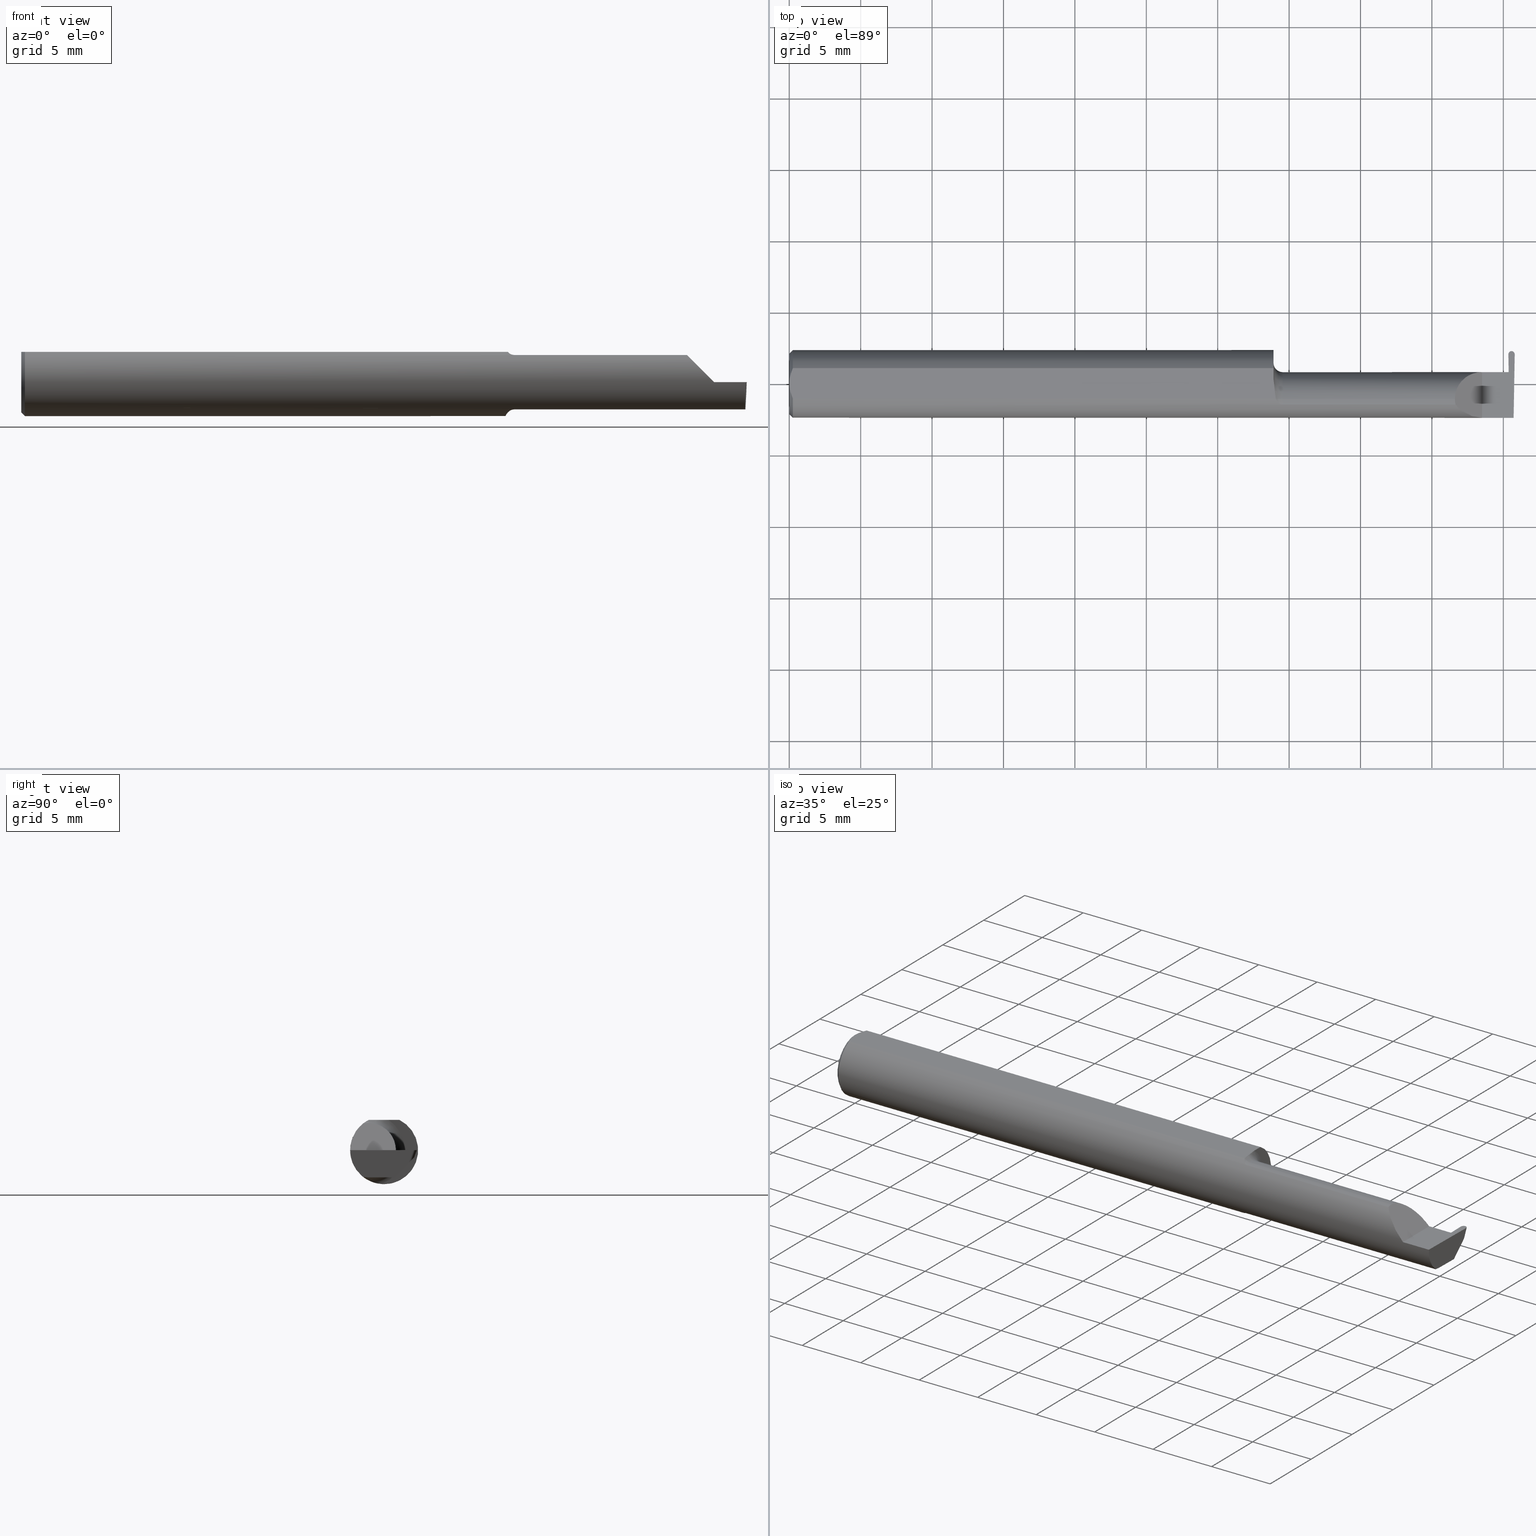
[diagram: canonical four-view strip — front | top / right | iso, engineering-drawing reading convention]
A machine part, canonical four-view strip (front | top / right | iso — engineering-drawing reading convention). The complete STEP part file that produces these views, byte-faithful:
ISO-10303-21;
HEADER;
FILE_DESCRIPTION (( 'STEP AP203' ),
    '1' );
FILE_NAME ('221801-GFR017K-10.STEP',
    '2024-06-17T17:56:43',
    ( '' ),
    ( '' ),
    'SwSTEP 2.0',
    'SolidWorks 2022',
    '' );
FILE_SCHEMA (( 'CONFIG_CONTROL_DESIGN' ));
ENDSEC;

DATA;
#1 = ORIENTED_EDGE ( 'NONE', *, *, #764, .F. ) ;
#2 = DIRECTION ( 'NONE',  ( -1.000000000000000000, -0.000000000000000000, -0.000000000000000000 ) ) ;
#3 = EDGE_CURVE ( 'NONE', #665, #741, #28, .T. ) ;
#4 = DIRECTION ( 'NONE',  ( 0.000000000000000000, 0.000000000000000000, -1.000000000000000000 ) ) ;
#5 = ORIENTED_EDGE ( 'NONE', *, *, #717, .F. ) ;
#6 = CARTESIAN_POINT ( 'NONE',  ( 1.985000026482436342, 0.02931965133412151037, -0.04667009593691542890 ) ) ;
#7 = VECTOR ( 'NONE', #108, 39.37007874015748143 ) ;
#8 = CARTESIAN_POINT ( 'NONE',  ( 1.338953896433695556, -0.03733827064844362498, -0.08603332211978831356 ) ) ;
#9 = DIRECTION ( 'NONE',  ( 0.000000000000000000, 0.000000000000000000, -1.000000000000000000 ) ) ;
#10 = FACE_OUTER_BOUND ( 'NONE', #155, .T. ) ;
#11 = VECTOR ( 'NONE', #567, 39.37007874015748854 ) ;
#12 = CARTESIAN_POINT ( 'NONE',  ( 0.009999999999999877043, -0.04209513035969864037, 0.08359999999999988274 ) ) ;
#13 = DIRECTION ( 'NONE',  ( -1.000000000000000000, -0.000000000000000000, -0.000000000000000000 ) ) ;
#14 = ORIENTED_EDGE ( 'NONE', *, *, #16, .F. ) ;
#15 = FACE_OUTER_BOUND ( 'NONE', #170, .T. ) ;
#16 = EDGE_CURVE ( 'NONE', #321, #549, #771, .T. ) ;
#17 =( CONVERSION_BASED_UNIT ( 'INCH', #374 ) LENGTH_UNIT ( ) NAMED_UNIT ( #778 ) );
#18 = EDGE_LOOP ( 'NONE', ( #692, #405, #481, #192, #14, #554 ) ) ;
#19 = DIRECTION ( 'NONE',  ( 1.000000000000000000, -0.000000000000000000, -0.000000000000000000 ) ) ;
#20 = EDGE_CURVE ( 'NONE', #751, #537, #33, .T. ) ;
#21 = ORIENTED_EDGE ( 'NONE', *, *, #690, .F. ) ;
#22 = CARTESIAN_POINT ( 'NONE',  ( -3.937007874047004035E-05, 0.08348456554894213844, -0.01899999999999999953 ) ) ;
#23 = FACE_OUTER_BOUND ( 'NONE', #46, .T. ) ;
#24 = ORIENTED_EDGE ( 'NONE', *, *, #513, .T. ) ;
#25 = ORIENTED_EDGE ( 'NONE', *, *, #573, .F. ) ;
#26 = PLANE ( 'NONE',  #626 ) ;
#27 = ADVANCED_FACE ( 'NONE', ( #782 ), #473, .T. ) ;
#28 = LINE ( 'NONE', #527, #385 ) ;
#29 = AXIS2_PLACEMENT_3D ( 'NONE', #807, #688, #795 ) ;
#30 = CARTESIAN_POINT ( 'NONE',  ( 1.834999999999999520, -0.04260000000000003367, 0.07500000000000002498 ) ) ;
#31 = DATE_AND_TIME ( #347, #270 ) ;
#32 = EDGE_LOOP ( 'NONE', ( #121, #36, #661, #101, #594 ) ) ;
#33 = LINE ( 'NONE', #279, #796 ) ;
#34 = PRODUCT ( '221801-GFR017K-10', '221801-GFR017K-10', '', ( #191 ) ) ;
#35 = CYLINDRICAL_SURFACE ( 'NONE', #44, 0.008750000000000000833 ) ;
#36 = ORIENTED_EDGE ( 'NONE', *, *, #305, .F. ) ;
#37 =( BOUNDED_CURVE ( )  B_SPLINE_CURVE ( 3, ( #467, #396, #79, #774 ),
 .UNSPECIFIED., .F., .T. ) 
 B_SPLINE_CURVE_WITH_KNOTS ( ( 4, 4 ),
 ( 6.177091236413993158, 7.752341154236731313 ),
 .UNSPECIFIED. ) 
 CURVE ( )  GEOMETRIC_REPRESENTATION_ITEM ( )  RATIONAL_B_SPLINE_CURVE ( ( 1.000000000000000000, 0.8036869647627038482, 0.8036869647627038482, 1.000000000000000000 ) ) 
 REPRESENTATION_ITEM ( '' )  );
#38 = VECTOR ( 'NONE', #742, 39.37007874015748143 ) ;
#39 = ORIENTED_EDGE ( 'NONE', *, *, #177, .T. ) ;
#40 = CARTESIAN_POINT ( 'NONE',  ( 1.359999999999999654, -0.04260000000000002673, -0.07500000000000002498 ) ) ;
#41 = EDGE_CURVE ( 'NONE', #144, #751, #671, .T. ) ;
#42 = CARTESIAN_POINT ( 'NONE',  ( 1.334999999999999742, -0.04260000000000003367, 0.000000000000000000 ) ) ;
#43 = CARTESIAN_POINT ( 'NONE',  ( 1.986444300365750371, 0.08282371805517305119, -0.01966084749376911106 ) ) ;
#44 = AXIS2_PLACEMENT_3D ( 'NONE', #280, #730, #532 ) ;
#45 = CARTESIAN_POINT ( 'NONE',  ( 1.341129652885479251, -0.04209513035970115225, 0.08359999999999991049 ) ) ;
#46 = EDGE_LOOP ( 'NONE', ( #376, #710 ) ) ;
#47 = EDGE_CURVE ( 'NONE', #463, #418, #454, .T. ) ;
#48 = CARTESIAN_POINT ( 'NONE',  ( 1.359999999999999654, -0.04260000000000003367, 0.000000000000000000 ) ) ;
#49 = ADVANCED_FACE ( 'NONE', ( #482 ), #728, .F. ) ;
#50 = ORIENTED_EDGE ( 'NONE', *, *, #426, .F. ) ;
#51 = CARTESIAN_POINT ( 'NONE',  ( 1.339570820222979908, -0.02392027542784326555, 0.08359999999999992437 ) ) ;
#52 = CARTESIAN_POINT ( 'NONE',  ( 0.000000000000000000, 0.000000000000000000, 0.000000000000000000 ) ) ;
#53 = EDGE_CURVE ( 'NONE', #741, #253, #71, .T. ) ;
#54 = CARTESIAN_POINT ( 'NONE',  ( 1.977266484668011248, 0.03233910125649560457, -0.001743911843603002240 ) ) ;
#55 = ADVANCED_FACE ( 'NONE', ( #702 ), #414, .F. ) ;
#56 = ORIENTED_EDGE ( 'NONE', *, *, #333, .T. ) ;
#57 = CARTESIAN_POINT ( 'NONE',  ( 1.991240805000000114, 0.08936171360469136182, -0.002852668426037409388 ) ) ;
#58 = PLANE ( 'NONE',  #195 ) ;
#59 = LOCAL_TIME ( 10, 56, 43.00000000000000000, #588 ) ;
#60 = PRODUCT_DEFINITION_SHAPE ( 'NONE', 'NONE',  #78 ) ;
#61 = CARTESIAN_POINT ( 'NONE',  ( 1.337415450430337494, -0.03151229630690480926, -0.08835846806355290850 ) ) ;
#62 = ORIENTED_EDGE ( 'NONE', *, *, #333, .F. ) ;
#63 = LINE ( 'NONE', #551, #72 ) ;
#64 = CARTESIAN_POINT ( 'NONE',  ( 1.341356684838558522, -0.04260000000000006143, -0.08334386600104411180 ) ) ;
#65 = EDGE_LOOP ( 'NONE', ( #732, #56, #118, #648 ) ) ;
#66 = CARTESIAN_POINT ( 'NONE',  ( 1.983339777177351770, 0.03239999999999999825, 0.000000000000000000 ) ) ;
#67 = CLOSED_SHELL ( 'NONE', ( #276, #189, #27, #744, #791, #731, #646, #354, #49, #808, #658, #287, #416, #586, #545, #700, #55, #529, #196, #199, #75, #694, #367 ) ) ;
#68 = DIRECTION ( 'NONE',  ( 1.000000000000000000, 0.000000000000000000, 0.000000000000000000 ) ) ;
#69 = EDGE_CURVE ( 'NONE', #736, #546, #238, .T. ) ;
#70 = CARTESIAN_POINT ( 'NONE',  ( 1.836620632051321200, -0.05810704225352100044, 0.07337936794867835899 ) ) ;
#71 = LINE ( 'NONE', #608, #38 ) ;
#72 = VECTOR ( 'NONE', #729, 39.37007874015748854 ) ;
#73 = DIRECTION ( 'NONE',  ( 0.03490480639812536257, 0.000000000000000000, 0.9993906415863165194 ) ) ;
#74 = CARTESIAN_POINT ( 'NONE',  ( 1.334999999999999742, -0.04260000000000003367, 0.000000000000000000 ) ) ;
#75 = ADVANCED_FACE ( 'NONE', ( #617 ), #672, .F. ) ;
#76 = CARTESIAN_POINT ( 'NONE',  ( -3.937007874047004035E-05, 0.09039999999999999425, 0.000000000000000000 ) ) ;
#77 = CARTESIAN_POINT ( 'NONE',  ( 1.334999999999999742, 0.01227294415283365983, 0.08359999999999991049 ) ) ;
#78 = PRODUCT_DEFINITION ( 'UNKNOWN', '', #402, #178 ) ;
#79 = CARTESIAN_POINT ( 'NONE',  ( 1.982395095373120864, 0.08652078431768195355, 1.083994772031835482E-18 ) ) ;
#80 = PERSON_AND_ORGANIZATION ( #753, #560 ) ;
#81 = AXIS2_PLACEMENT_3D ( 'NONE', #536, #726, #590 ) ;
#82 = DIRECTION ( 'NONE',  ( 0.9992386149554827179, 0.01744177490282354179, 0.03489949670250104552 ) ) ;
#83 = DATE_AND_TIME ( #88, #59 ) ;
#84 = ORIENTED_EDGE ( 'NONE', *, *, #440, .T. ) ;
#85 = EDGE_CURVE ( 'NONE', #537, #549, #490, .T. ) ;
#86 = B_SPLINE_CURVE_WITH_KNOTS ( 'NONE', 3,
 ( #553, #615, #116, #301, #368, #754, #242, #64 ),
 .UNSPECIFIED., .F., .F.,
 ( 4, 2, 2, 4 ),
 ( 1.968126669309073504E-07, 0.0001761966947278581865, 0.0003521965767887855030, 0.0007041963409106265833 ),
 .UNSPECIFIED. ) ;
#87 = CARTESIAN_POINT ( 'NONE',  ( 0.000000000000000000, 0.000000000000000000, 0.08359999999999991049 ) ) ;
#88 = CALENDAR_DATE ( 2024, 17, 6 ) ;
#89 = ORIENTED_EDGE ( 'NONE', *, *, #597, .T. ) ;
#90 = ORIENTED_EDGE ( 'NONE', *, *, #329, .T. ) ;
#91 = FACE_OUTER_BOUND ( 'NONE', #772, .T. ) ;
#92 = CALENDAR_DATE ( 2024, 17, 6 ) ;
#93 = ORIENTED_EDGE ( 'NONE', *, *, #489, .F. ) ;
#94 = CARTESIAN_POINT ( 'NONE',  ( 0.009999999999999877043, 0.04209513035969864037, 0.08359999999999988274 ) ) ;
#95 = LINE ( 'NONE', #596, #633 ) ;
#96 = ORIENTED_EDGE ( 'NONE', *, *, #16, .T. ) ;
#97 = VERTEX_POINT ( 'NONE', #57 ) ;
#98 = LINE ( 'NONE', #282, #461 ) ;
#99 = EDGE_CURVE ( 'NONE', #418, #604, #631, .T. ) ;
#100 = CIRCLE ( 'NONE', #205, 0.09360000000000001652 ) ;
#101 = ORIENTED_EDGE ( 'NONE', *, *, #412, .F. ) ;
#102 = CARTESIAN_POINT ( 'NONE',  ( 1.910000000000000142, -0.09360000000000005815, 1.102182119232621301E-17 ) ) ;
#103 = DIRECTION ( 'NONE',  ( 0.000000000000000000, 0.000000000000000000, -1.000000000000000000 ) ) ;
#104 = ORIENTED_EDGE ( 'NONE', *, *, #69, .F. ) ;
#105 = CARTESIAN_POINT ( 'NONE',  ( 0.000000000000000000, 0.04209513035969864037, 0.08359999999999988274 ) ) ;
#106 = DIRECTION ( 'NONE',  ( 0.000000000000000000, 0.000000000000000000, -1.000000000000000000 ) ) ;
#107 = CIRCLE ( 'NONE', #563, 0.02499999999999993894 ) ;
#108 = DIRECTION ( 'NONE',  ( -1.000000000000000000, -0.000000000000000000, -0.000000000000000000 ) ) ;
#109 = ORIENTED_EDGE ( 'NONE', *, *, #220, .T. ) ;
#110 = CARTESIAN_POINT ( 'NONE',  ( 1.999990968925781987, 0.08104697476785366339, 0.000000000000000000 ) ) ;
#111 = DIRECTION ( 'NONE',  ( 1.000000000000000000, 0.000000000000000000, 0.000000000000000000 ) ) ;
#112 = ORIENTED_EDGE ( 'NONE', *, *, #241, .T. ) ;
#113 = CARTESIAN_POINT ( 'NONE',  ( 1.336463898467977085, -0.005727447913487409940, 0.08359999999999991049 ) ) ;
#114 = DIRECTION ( 'NONE',  ( -1.000000000000000000, -0.000000000000000000, -0.000000000000000000 ) ) ;
#115 = TOROIDAL_SURFACE ( 'NONE', #568, 0.09999999999999996392, 0.02499999999999993894 ) ;
#116 = CARTESIAN_POINT ( 'NONE',  ( 1.355389671955115727, -0.05750350940205783967, -0.07386306649500078148 ) ) ;
#117 = AXIS2_PLACEMENT_3D ( 'NONE', #52, #111, #680 ) ;
#118 = ORIENTED_EDGE ( 'NONE', *, *, #479, .T. ) ;
#119 = DIRECTION ( 'NONE',  ( -1.000000000000000000, -0.000000000000000000, -0.000000000000000000 ) ) ;
#120 = VECTOR ( 'NONE', #432, 39.37007874015748143 ) ;
#121 = ORIENTED_EDGE ( 'NONE', *, *, #387, .F. ) ;
#122 = CARTESIAN_POINT ( 'NONE',  ( 2.115884466375952400, -0.04259999999999980469, -0.07500000000000002498 ) ) ;
#123 = CARTESIAN_POINT ( 'NONE',  ( 1.982613296257933255, 0.1198977383242114114, 0.01741317277526966550 ) ) ;
#124 = ORIENTED_EDGE ( 'NONE', *, *, #533, .T. ) ;
#125 = EDGE_CURVE ( 'NONE', #485, #369, #100, .T. ) ;
#126 = VECTOR ( 'NONE', #538, 39.37007874015748143 ) ;
#127 = CARTESIAN_POINT ( 'NONE',  ( 1.854690286057536941, -0.08092595952420821026, 0.05530971394246249340 ) ) ;
#128 = CC_DESIGN_DATE_AND_TIME_ASSIGNMENT ( #471, #651, ( #312 ) ) ;
#129 = CARTESIAN_POINT ( 'NONE',  ( 1.980394745474062690, 0.1353532775798607091, 0.03286871203091912275 ) ) ;
#130 = AXIS2_PLACEMENT_3D ( 'NONE', #697, #502, #441 ) ;
#131 = DIRECTION ( 'NONE',  ( 0.000000000000000000, 0.000000000000000000, 1.000000000000000000 ) ) ;
#132 = AXIS2_PLACEMENT_3D ( 'NONE', #48, #229, #245 ) ;
#133 = DIRECTION ( 'NONE',  ( 0.000000000000000000, -0.9993908270190957621, 0.03489949670250104552 ) ) ;
#134 = EDGE_CURVE ( 'NONE', #751, #508, #668, .T. ) ;
#135 = EDGE_CURVE ( 'NONE', #433, #281, #174, .T. ) ;
#136 = DIRECTION ( 'NONE',  ( -0.9992386149554827179, 0.01744177490282310811, 0.03489949670250104552 ) ) ;
#137 =( LENGTH_UNIT ( ) NAMED_UNIT ( * ) SI_UNIT ( $, .METRE. ) );
#138 = ORIENTED_EDGE ( 'NONE', *, *, #510, .T. ) ;
#139 = EDGE_CURVE ( 'NONE', #612, #665, #194, .T. ) ;
#140 = CARTESIAN_POINT ( 'NONE',  ( 1.996630704565214964, 0.03119062438263836903, -0.07129394116630433098 ) ) ;
#141 = PERSON_AND_ORGANIZATION ( #753, #560 ) ;
#142 = ORIENTED_EDGE ( 'NONE', *, *, #134, .F. ) ;
#143 = EDGE_CURVE ( 'NONE', #253, #546, #737, .T. ) ;
#144 = VERTEX_POINT ( 'NONE', #419 ) ;
#145 = DIRECTION ( 'NONE',  ( 1.000000000000000000, 0.000000000000000000, 0.000000000000000000 ) ) ;
#146 = DIRECTION ( 'NONE',  ( 0.000000000000000000, 0.000000000000000000, 1.000000000000000000 ) ) ;
#147 = DATE_AND_TIME ( #214, #630 ) ;
#148 = ORIENTED_EDGE ( 'NONE', *, *, #249, .F. ) ;
#149 = LINE ( 'NONE', #210, #363 ) ;
#150 = PERSON_AND_ORGANIZATION ( #753, #560 ) ;
#151 = CARTESIAN_POINT ( 'NONE',  ( -2.524841811771306987E-16, 0.007317304829308914245, 0.08359999999999991049 ) ) ;
#152 = CARTESIAN_POINT ( 'NONE',  ( 1.341356684838558522, -0.04260000000000008225, 0.08334386600104411180 ) ) ;
#153 = PERSON_AND_ORGANIZATION ( #753, #560 ) ;
#154 = ORIENTED_EDGE ( 'NONE', *, *, #387, .T. ) ;
#155 = EDGE_LOOP ( 'NONE', ( #722, #109, #182, #24 ) ) ;
#156 = EDGE_CURVE ( 'NONE', #485, #144, #613, .T. ) ;
#157 = LINE ( 'NONE', #654, #202 ) ;
#158 = EDGE_LOOP ( 'NONE', ( #666, #251, #124 ) ) ;
#159 =( GEOMETRIC_REPRESENTATION_CONTEXT ( 3 ) GLOBAL_UNCERTAINTY_ASSIGNED_CONTEXT ( ( #424 ) ) GLOBAL_UNIT_ASSIGNED_CONTEXT ( ( #17, #565, #438 ) ) REPRESENTATION_CONTEXT ( 'NONE', 'WORKASPACE' ) );
#160 = ORIENTED_EDGE ( 'NONE', *, *, #3, .F. ) ;
#161 = CARTESIAN_POINT ( 'NONE',  ( 1.834999999999999520, -0.04781600192481529760, 0.07500000000000003886 ) ) ;
#162 = CARTESIAN_POINT ( 'NONE',  ( 1.996942494641693600, -0.09360000000000001652, 0.000000000000000000 ) ) ;
#163 = VERTEX_POINT ( 'NONE', #294 ) ;
#164 = AXIS2_PLACEMENT_3D ( 'NONE', #449, #82, #336 ) ;
#165 = CARTESIAN_POINT ( 'NONE',  ( -3.937007874047004035E-05, 0.09039999999999999425, 0.000000000000000000 ) ) ;
#166 = CARTESIAN_POINT ( 'NONE',  ( 1.991240804999999892, 0.08344181815339782315, -0.01904274739554431481 ) ) ;
#167 = DIRECTION ( 'NONE',  ( -0.03549161113179510885, 0.03487750912278164694, 0.9987611851171729338 ) ) ;
#168 = ORIENTED_EDGE ( 'NONE', *, *, #209, .F. ) ;
#169 = AXIS2_PLACEMENT_3D ( 'NONE', #304, #555, #285 ) ;
#170 = EDGE_LOOP ( 'NONE', ( #499, #138, #142, #788, #307, #562, #747 ) ) ;
#171 = DIRECTION ( 'NONE',  ( -1.000000000000000000, -0.000000000000000000, -0.000000000000000000 ) ) ;
#172 = CARTESIAN_POINT ( 'NONE',  ( 0.000000000000000000, 0.000000000000000000, 0.000000000000000000 ) ) ;
#173 = VECTOR ( 'NONE', #313, 39.37007874015748143 ) ;
#174 =( BOUNDED_CURVE ( )  B_SPLINE_CURVE ( 3, ( #110, #444, #486, #380 ),
 .UNSPECIFIED., .F., .T. ) 
 B_SPLINE_CURVE_WITH_KNOTS ( ( 4, 4 ),
 ( 1.672436806532650477, 3.247686724355353771 ),
 .UNSPECIFIED. ) 
 CURVE ( )  GEOMETRIC_REPRESENTATION_ITEM ( )  RATIONAL_B_SPLINE_CURVE ( ( 1.000000000000000000, 0.8036869647627119528, 0.8036869647627119528, 1.000000000000000000 ) ) 
 REPRESENTATION_ITEM ( '' )  );
#175 = CARTESIAN_POINT ( 'NONE',  ( 1.999990968925781987, 0.08104697476785366339, 0.000000000000000000 ) ) ;
#176 = ORIENTED_EDGE ( 'NONE', *, *, #241, .F. ) ;
#177 = EDGE_CURVE ( 'NONE', #503, #281, #634, .T. ) ;
#178 = DESIGN_CONTEXT ( 'detailed design', #740, 'design' ) ;
#179 = CARTESIAN_POINT ( 'NONE',  ( 1.986630673423979587, -1.954482585631507119, -0.02333781029786680811 ) ) ;
#180 = LINE ( 'NONE', #430, #222 ) ;
#181 = LINE ( 'NONE', #190, #120 ) ;
#182 = ORIENTED_EDGE ( 'NONE', *, *, #533, .F. ) ;
#183 = PLANE ( 'NONE',  #439 ) ;
#184 = EDGE_CURVE ( 'NONE', #485, #321, #434, .T. ) ;
#185 = CARTESIAN_POINT ( 'NONE',  ( 1.359999999999999654, -0.04260000000000003367, 0.09999999999999996392 ) ) ;
#186 = CIRCLE ( 'NONE', #29, 0.07500000000000002498 ) ;
#187 = VERTEX_POINT ( 'NONE', #324 ) ;
#188 = CARTESIAN_POINT ( 'NONE',  ( 1.983339777177351770, 0.03239999999999999825, 0.000000000000000000 ) ) ;
#189 = ADVANCED_FACE ( 'NONE', ( #15 ), #233, .F. ) ;
#190 = CARTESIAN_POINT ( 'NONE',  ( 1.671240805000000051, -0.05810704225352111146, 0.07337936794867830348 ) ) ;
#191 = MECHANICAL_CONTEXT ( 'NONE', #475, 'mechanical' ) ;
#192 = ORIENTED_EDGE ( 'NONE', *, *, #85, .T. ) ;
#193 = CARTESIAN_POINT ( 'NONE',  ( 1.983881970416342400, 0.06877923926384968412, -0.03370532628509260997 ) ) ;
#194 = LINE ( 'NONE', #789, #309 ) ;
#195 = AXIS2_PLACEMENT_3D ( 'NONE', #609, #734, #614 ) ;
#196 = ADVANCED_FACE ( 'NONE', ( #649 ), #257, .F. ) ;
#197 = CYLINDRICAL_SURFACE ( 'NONE', #647, 0.07500000000000002498 ) ;
#198 = ORIENTED_EDGE ( 'NONE', *, *, #143, .T. ) ;
#199 = ADVANCED_FACE ( 'NONE', ( #769 ), #26, .F. ) ;
#200 = DIRECTION ( 'NONE',  ( 0.000000000000000000, -0.7071067811865513475, 0.7071067811865436870 ) ) ;
#201 = CARTESIAN_POINT ( 'NONE',  ( 0.004072204388638606815, -0.02891446873729326336, 0.08359999999999991049 ) ) ;
#202 = VECTOR ( 'NONE', #663, 39.37007874015748854 ) ;
#203 = CARTESIAN_POINT ( 'NONE',  ( 0.000000000000000000, 0.000000000000000000, 0.000000000000000000 ) ) ;
#204 = CARTESIAN_POINT ( 'NONE',  ( 1.999998665932175124, 0.08148793596879662371, 0.000000000000000000 ) ) ;
#205 = AXIS2_PLACEMENT_3D ( 'NONE', #564, #234, #9 ) ;
#206 = LINE ( 'NONE', #140, #469 ) ;
#207 = ORIENTED_EDGE ( 'NONE', *, *, #47, .F. ) ;
#208 = ORIENTED_EDGE ( 'NONE', *, *, #559, .F. ) ;
#209 = EDGE_CURVE ( 'NONE', #318, #211, #579, .T. ) ;
#210 = CARTESIAN_POINT ( 'NONE',  ( 1.334999999999999742, -0.04260000000000003367, 0.07500000000000002498 ) ) ;
#211 = VERTEX_POINT ( 'NONE', #641 ) ;
#212 = ORIENTED_EDGE ( 'NONE', *, *, #805, .T. ) ;
#213 = CARTESIAN_POINT ( 'NONE',  ( 1.996436576927335116, 0.02748456554894272708, -0.07500000000000002498 ) ) ;
#214 = CALENDAR_DATE ( 2024, 17, 6 ) ;
#215 = ORIENTED_EDGE ( 'NONE', *, *, #561, .F. ) ;
#216 = VERTEX_POINT ( 'NONE', #213 ) ;
#217 = PLANE ( 'NONE',  #552 ) ;
#218 = AXIS2_PLACEMENT_3D ( 'NONE', #392, #266, #103 ) ;
#219 = COORDINATED_UNIVERSAL_TIME_OFFSET ( 8, 0, .BEHIND. ) ;
#220 = EDGE_CURVE ( 'NONE', #187, #364, #149, .T. ) ;
#221 = EDGE_LOOP ( 'NONE', ( #84, #519, #488, #50 ) ) ;
#222 = VECTOR ( 'NONE', #366, 39.37007874015748143 ) ;
#223 = DIRECTION ( 'NONE',  ( -0.7071067811865507924, 0.000000000000000000, 0.7071067811865441310 ) ) ;
#224 = ORIENTED_EDGE ( 'NONE', *, *, #683, .F. ) ;
#225 = EDGE_LOOP ( 'NONE', ( #243, #584, #715 ) ) ;
#226 = DIRECTION ( 'NONE',  ( -0.03549161113179510885, 0.03487750912278164694, 0.9987611851171729338 ) ) ;
#227 = EDGE_LOOP ( 'NONE', ( #408, #348, #338, #580, #293, #344 ) ) ;
#228 = CARTESIAN_POINT ( 'NONE',  ( 1.982484788118772157, 0.08109858189432718467, 0.0001417894146689425961 ) ) ;
#229 = DIRECTION ( 'NONE',  ( -1.000000000000000000, -0.000000000000000000, -0.000000000000000000 ) ) ;
#230 =( BOUNDED_CURVE ( )  B_SPLINE_CURVE ( 3, ( #452, #704, #572, #384 ),
 .UNSPECIFIED., .F., .F. ) 
 B_SPLINE_CURVE_WITH_KNOTS ( ( 4, 4 ),
 ( 1.570796326794928532, 1.647233243520389800 ),
 .UNSPECIFIED. ) 
 CURVE ( )  GEOMETRIC_REPRESENTATION_ITEM ( )  RATIONAL_B_SPLINE_CURVE ( ( 1.000000000000000000, 0.9995131757411304108, 0.9995131757411304108, 1.000000000000000000 ) ) 
 REPRESENTATION_ITEM ( '' )  );
#231 = DIRECTION ( 'NONE',  ( 0.000000000000000000, 0.000000000000000000, -1.000000000000000000 ) ) ;
#232 = ORIENTED_EDGE ( 'NONE', *, *, #522, .T. ) ;
#233 = TOROIDAL_SURFACE ( 'NONE', #520, 0.09999999999999996392, 0.02499999999999993894 ) ;
#234 = DIRECTION ( 'NONE',  ( 1.000000000000000000, 0.000000000000000000, 0.000000000000000000 ) ) ;
#235 = DIRECTION ( 'NONE',  ( -0.03876062227022340767, -0.3417631236437465581, -0.9389864650134709390 ) ) ;
#236 = CARTESIAN_POINT ( 'NONE',  ( 1.359999999999999654, -0.04260000000000003367, 0.07500000000000002498 ) ) ;
#237 = ORIENTED_EDGE ( 'NONE', *, *, #99, .T. ) ;
#238 = LINE ( 'NONE', #129, #126 ) ;
#239 = LINE ( 'NONE', #291, #759 ) ;
#240 = B_SPLINE_CURVE_WITH_KNOTS ( 'NONE', 3,
 ( #436, #739, #54, #501 ),
 .UNSPECIFIED., .F., .F.,
 ( 4, 4 ),
 ( 0.000000000000000000, 1.000000000000000000 ),
 .UNSPECIFIED. ) ;
#241 = EDGE_CURVE ( 'NONE', #216, #163, #705, .T. ) ;
#242 = CARTESIAN_POINT ( 'NONE',  ( 1.343086474849918721, -0.04638796853538173365, -0.08140770120152260314 ) ) ;
#243 = ORIENTED_EDGE ( 'NONE', *, *, #717, .T. ) ;
#244 = DIRECTION ( 'NONE',  ( -1.000000000000000000, -0.000000000000000000, -0.000000000000000000 ) ) ;
#245 = DIRECTION ( 'NONE',  ( 0.000000000000000000, 0.000000000000000000, 1.000000000000000000 ) ) ;
#246 = EDGE_LOOP ( 'NONE', ( #224, #526, #237, #616, #682, #168, #534, #335, #269, #442, #359, #5, #398, #93 ) ) ;
#247 = CARTESIAN_POINT ( 'NONE',  ( 1.836620632051321200, -0.05810704225352100044, 0.07337936794867835899 ) ) ;
#248 = AXIS2_PLACEMENT_3D ( 'NONE', #179, #733, #284 ) ;
#249 = EDGE_CURVE ( 'NONE', #503, #253, #37, .T. ) ;
#250 = CARTESIAN_POINT ( 'NONE',  ( 1.986043175114837744, -0.001060451341131617544, -0.07500000000000003886 ) ) ;
#251 = ORIENTED_EDGE ( 'NONE', *, *, #209, .T. ) ;
#252 = EDGE_CURVE ( 'NONE', #724, #216, #206, .T. ) ;
#253 = VERTEX_POINT ( 'NONE', #713 ) ;
#254 = CARTESIAN_POINT ( 'NONE',  ( 2.999519565323742037E-32, -0.09359999999999998876, 2.449293598294716768E-16 ) ) ;
#255 = CARTESIAN_POINT ( 'NONE',  ( 1.986007795843374391, 0.02748456554894274442, -0.07499999999999999722 ) ) ;
#256 = AXIS2_PLACEMENT_3D ( 'NONE', #495, #550, #806 ) ;
#257 = PLANE ( 'NONE',  #164 ) ;
#258 =( BOUNDED_CURVE ( )  B_SPLINE_CURVE ( 3, ( #623, #250, #6, #493 ),
 .UNSPECIFIED., .F., .T. ) 
 B_SPLINE_CURVE_WITH_KNOTS ( ( 4, 4 ),
 ( 3.176499238629679756, 4.677482395344800814 ),
 .UNSPECIFIED. ) 
 CURVE ( )  GEOMETRIC_REPRESENTATION_ITEM ( )  RATIONAL_B_SPLINE_CURVE ( ( 1.000000000000000000, 0.8209024677461141950, 0.8209024677461141950, 1.000000000000000000 ) ) 
 REPRESENTATION_ITEM ( '' )  );
#259 = LINE ( 'NONE', #703, #173 ) ;
#260 = ORIENTED_EDGE ( 'NONE', *, *, #265, .T. ) ;
#261 = CARTESIAN_POINT ( 'NONE',  ( 1.334999999999999742, 0.04209513035969864037, 0.08359999999999988274 ) ) ;
#262 = FACE_OUTER_BOUND ( 'NONE', #478, .T. ) ;
#263 = PERSON_AND_ORGANIZATION_ROLE ( 'design_owner' ) ;
#264 = VERTEX_POINT ( 'NONE', #457 ) ;
#265 = EDGE_CURVE ( 'NONE', #97, #523, #230, .T. ) ;
#266 = DIRECTION ( 'NONE',  ( 1.000000000000000000, 0.000000000000000000, 0.000000000000000000 ) ) ;
#267 = MANIFOLD_SOLID_BREP ( 'Radii', #67 ) ;
#268 = CC_DESIGN_PERSON_AND_ORGANIZATION_ASSIGNMENT ( #330, #780, ( #312 ) ) ;
#269 = ORIENTED_EDGE ( 'NONE', *, *, #125, .T. ) ;
#270 = LOCAL_TIME ( 10, 56, 43.00000000000000000, #706 ) ;
#271 = CARTESIAN_POINT ( 'NONE',  ( 1.351469028275930739, -0.05559939362423890752, 0.07530665289274073027 ) ) ;
#272 = SHAPE_DEFINITION_REPRESENTATION ( #60, #678 ) ;
#273 = VECTOR ( 'NONE', #167, 39.37007874015748143 ) ;
#274 = ORIENTED_EDGE ( 'NONE', *, *, #125, .F. ) ;
#275 = CARTESIAN_POINT ( 'NONE',  ( 1.834999999999999298, 0.001333982822017827988, 0.07500000000000002498 ) ) ;
#276 = ADVANCED_FACE ( 'NONE', ( #262 ), #115, .F. ) ;
#277 = APPROVAL_DATE_TIME ( #31, #602 ) ;
#278 = ORIENTED_EDGE ( 'NONE', *, *, #177, .F. ) ;
#279 = CARTESIAN_POINT ( 'NONE',  ( 1.334999999999999742, 0.09360000000000005815, 0.08359999999999991049 ) ) ;
#280 = CARTESIAN_POINT ( 'NONE',  ( 1.988131554871229945, 0.1085545212478024740, 0.07546242569077339646 ) ) ;
#281 = VERTEX_POINT ( 'NONE', #388 ) ;
#282 = CARTESIAN_POINT ( 'NONE',  ( -3.937007874047004035E-05, 0.02748456554894273055, -0.07500000000000002498 ) ) ;
#283 = VERTEX_POINT ( 'NONE', #577 ) ;
#284 = DIRECTION ( 'NONE',  ( 0.03547001781079536092, 0.000000000000000000, -0.9993707409347653003 ) ) ;
#285 = DIRECTION ( 'NONE',  ( 0.000000000000000000, 0.000000000000000000, -1.000000000000000000 ) ) ;
#286 = AXIS2_PLACEMENT_3D ( 'NONE', #185, #746, #4 ) ;
#287 = ADVANCED_FACE ( 'NONE', ( #23 ), #708, .F. ) ;
#288 = CARTESIAN_POINT ( 'NONE',  ( 1.910000000000000142, 0.03239999999999997743, 8.143901214329935029E-17 ) ) ;
#289 = ORIENTED_EDGE ( 'NONE', *, *, #805, .F. ) ;
#290 = DIRECTION ( 'NONE',  ( 1.000000000000000000, 0.000000000000000000, 0.000000000000000000 ) ) ;
#291 = CARTESIAN_POINT ( 'NONE',  ( 1.671240805000000051, -0.05810704225352111146, -0.07337936794867830348 ) ) ;
#292 = FACE_OUTER_BOUND ( 'NONE', #662, .T. ) ;
#293 = ORIENTED_EDGE ( 'NONE', *, *, #340, .F. ) ;
#294 = CARTESIAN_POINT ( 'NONE',  ( 1.995213246285213016, -0.04259999999999980469, -0.07500000000000002498 ) ) ;
#295 = CARTESIAN_POINT ( 'NONE',  ( 1.334999999999999742, 0.000000000000000000, 0.000000000000000000 ) ) ;
#296 = EDGE_CURVE ( 'NONE', #369, #549, #343, .T. ) ;
#297 = CARTESIAN_POINT ( 'NONE',  ( 1.334999999999999742, -0.006757276995305315156, -0.09335576686851604356 ) ) ;
#298 = CC_DESIGN_SECURITY_CLASSIFICATION ( #312, ( #402 ) ) ;
#299 = ORIENTED_EDGE ( 'NONE', *, *, #53, .T. ) ;
#300 = CARTESIAN_POINT ( 'NONE',  ( 1.334999999999999742, 0.01227294415283365983, 0.08359999999999991049 ) ) ;
#301 = CARTESIAN_POINT ( 'NONE',  ( 1.351446782524423851, -0.05558685324519224702, -0.07531605361338927773 ) ) ;
#302 = ORIENTED_EDGE ( 'NONE', *, *, #522, .F. ) ;
#303 = EDGE_CURVE ( 'NONE', #187, #612, #372, .T. ) ;
#304 = CARTESIAN_POINT ( 'NONE',  ( 0.000000000000000000, 0.000000000000000000, 0.000000000000000000 ) ) ;
#305 = EDGE_CURVE ( 'NONE', #523, #724, #345, .T. ) ;
#306 = CARTESIAN_POINT ( 'NONE',  ( 1.994999172194938941, -0.05810704225352111146, -0.07337936794867830348 ) ) ;
#307 = ORIENTED_EDGE ( 'NONE', *, *, #314, .T. ) ;
#308 = CARTESIAN_POINT ( 'NONE',  ( 1.999998665932175124, 0.08148793596879662371, 0.000000000000000000 ) ) ;
#309 = VECTOR ( 'NONE', #290, 39.37007874015748143 ) ;
#310 = CARTESIAN_POINT ( 'NONE',  ( 1.359999999999999654, -0.05810704225352111146, -0.07337936794867830348 ) ) ;
#311 =( BOUNDED_CURVE ( )  B_SPLINE_CURVE ( 3, ( #247, #725, #161, #409 ),
 .UNSPECIFIED., .F., .T. ) 
 B_SPLINE_CURVE_WITH_KNOTS ( ( 4, 4 ),
 ( 6.074922494366331804, 6.283185307179586232 ),
 .UNSPECIFIED. ) 
 CURVE ( )  GEOMETRIC_REPRESENTATION_ITEM ( )  RATIONAL_B_SPLINE_CURVE ( ( 1.000000000000000000, 0.9963888149483995926, 0.9963888149483995926, 1.000000000000000000 ) ) 
 REPRESENTATION_ITEM ( '' )  );
#312 = SECURITY_CLASSIFICATION ( '', '', #453 ) ;
#313 = DIRECTION ( 'NONE',  ( -0.03876062227022355339, 0.3417631236437465581, 0.9389864650134708279 ) ) ;
#314 = EDGE_CURVE ( 'NONE', #144, #318, #465, .T. ) ;
#315 = VECTOR ( 'NONE', #581, 39.37007874015748143 ) ;
#316 = CARTESIAN_POINT ( 'NONE',  ( 1.994999172194938941, -0.05810704225352111146, -0.07337936794867830348 ) ) ;
#317 = PERSON_AND_ORGANIZATION ( #753, #560 ) ;
#318 = VERTEX_POINT ( 'NONE', #659 ) ;
#319 = CARTESIAN_POINT ( 'NONE',  ( 1.995250001108639148, -0.04049431757617889815, -0.07500000000000002498 ) ) ;
#320 = FACE_OUTER_BOUND ( 'NONE', #65, .T. ) ;
#321 = VERTEX_POINT ( 'NONE', #480 ) ;
#322 = CC_DESIGN_PERSON_AND_ORGANIZATION_ASSIGNMENT ( #317, #263, ( #34 ) ) ;
#323 = DIRECTION ( 'NONE',  ( 0.000000000000000000, -0.7071067811865436870, -0.7071067811865513475 ) ) ;
#324 = CARTESIAN_POINT ( 'NONE',  ( 1.834999999999999520, -0.04260000000000003367, 0.07500000000000002498 ) ) ;
#325 = LINE ( 'NONE', #122, #394 ) ;
#326 = APPROVAL_PERSON_ORGANIZATION ( #583, #602, #656 ) ;
#327 = PLANE ( 'NONE',  #435 ) ;
#328 = DIRECTION ( 'NONE',  ( -1.000000000000000000, -0.000000000000000000, -0.000000000000000000 ) ) ;
#329 = EDGE_CURVE ( 'NONE', #736, #264, #95, .T. ) ;
#330 = PERSON_AND_ORGANIZATION ( #753, #560 ) ;
#331 = ORIENTED_EDGE ( 'NONE', *, *, #597, .F. ) ;
#332 = CARTESIAN_POINT ( 'NONE',  ( 1.334999999999999742, 0.09359999999999990550, 0.000000000000000000 ) ) ;
#333 = EDGE_CURVE ( 'NONE', #264, #686, #407, .T. ) ;
#334 = PERSON_AND_ORGANIZATION_ROLE ( 'creator' ) ;
#335 = ORIENTED_EDGE ( 'NONE', *, *, #156, .F. ) ;
#336 = DIRECTION ( 'NONE',  ( 0.03490480639812536257, 0.000000000000000000, -0.9993906415863165194 ) ) ;
#337 = COORDINATED_UNIVERSAL_TIME_OFFSET ( 8, 0, .BEHIND. ) ;
#338 = ORIENTED_EDGE ( 'NONE', *, *, #305, .T. ) ;
#339 = EDGE_LOOP ( 'NONE', ( #428, #154, #373, #207, #776, #176 ) ) ;
#340 = EDGE_CURVE ( 'NONE', #786, #216, #98, .T. ) ;
#341 = CYLINDRICAL_SURFACE ( 'NONE', #81, 0.07500000000000002498 ) ;
#342 = PERSON_AND_ORGANIZATION ( #753, #560 ) ;
#343 = CIRCLE ( 'NONE', #525, 0.09360000000000001652 ) ;
#344 = ORIENTED_EDGE ( 'NONE', *, *, #427, .T. ) ;
#345 =( BOUNDED_CURVE ( )  B_SPLINE_CURVE ( 3, ( #350, #484, #540, #403 ),
 .UNSPECIFIED., .F., .T. ) 
 B_SPLINE_CURVE_WITH_KNOTS ( ( 4, 4 ),
 ( 3.199957163127305382, 4.698770164224573165 ),
 .UNSPECIFIED. ) 
 CURVE ( )  GEOMETRIC_REPRESENTATION_ITEM ( )  RATIONAL_B_SPLINE_CURVE ( ( 1.000000000000000000, 0.8213955281430331823, 0.8213955281430331823, 1.000000000000000000 ) ) 
 REPRESENTATION_ITEM ( '' )  );
#346 = CARTESIAN_POINT ( 'NONE',  ( 1.910000000000000142, -0.2500000000000000555, 1.102182119232621301E-17 ) ) ;
#347 = CALENDAR_DATE ( 2024, 17, 6 ) ;
#348 = ORIENTED_EDGE ( 'NONE', *, *, #690, .T. ) ;
#349 = ORIENTED_EDGE ( 'NONE', *, *, #479, .F. ) ;
#350 = CARTESIAN_POINT ( 'NONE',  ( 1.991240804999999892, 0.08344181815339782315, -0.01904274739554431481 ) ) ;
#351 = ORIENTED_EDGE ( 'NONE', *, *, #340, .T. ) ;
#352 = DIRECTION ( 'NONE',  ( -0.001239419280281404273, 0.9999992319196288060, 0.000000000000000000 ) ) ;
#353 = ORIENTED_EDGE ( 'NONE', *, *, #412, .T. ) ;
#354 = ADVANCED_FACE ( 'NONE', ( #779 ), #217, .F. ) ;
#355 = DIRECTION ( 'NONE',  ( -1.000000000000000000, -0.000000000000000000, -0.000000000000000000 ) ) ;
#356 = DIRECTION ( 'NONE',  ( 0.000000000000000000, 0.9396926207859084279, -0.3420201433256688794 ) ) ;
#357 = CARTESIAN_POINT ( 'NONE',  ( 1.866066017177981706, 0.03239999999999996355, 0.04393398282201791544 ) ) ;
#358 = VECTOR ( 'NONE', #446, 39.37007874015748143 ) ;
#359 = ORIENTED_EDGE ( 'NONE', *, *, #85, .F. ) ;
#360 = DIRECTION ( 'NONE',  ( 1.000000000000000000, 0.000000000000000000, 0.000000000000000000 ) ) ;
#361 = CYLINDRICAL_SURFACE ( 'NONE', #798, 0.09360000000000001652 ) ;
#362 = CARTESIAN_POINT ( 'NONE',  ( 1.335436655799339345, -0.01945041057485648317, -0.09177104786119409663 ) ) ;
#363 = VECTOR ( 'NONE', #524, 39.37007874015748143 ) ;
#364 = VERTEX_POINT ( 'NONE', #236 ) ;
#365 = CARTESIAN_POINT ( 'NONE',  ( 1.341082007218903360, -0.03301619840524120525, 0.08359999999999991049 ) ) ;
#366 = DIRECTION ( 'NONE',  ( -1.000000000000000000, -0.000000000000000000, -0.000000000000000000 ) ) ;
#367 = ADVANCED_FACE ( 'NONE', ( #292 ), #35, .T. ) ;
#368 = CARTESIAN_POINT ( 'NONE',  ( 1.349728336617689095, -0.05428341532129033614, -0.07627162539867103630 ) ) ;
#369 = VERTEX_POINT ( 'NONE', #474 ) ;
#370 = CARTESIAN_POINT ( 'NONE',  ( 1.986094660071884288, -0.04260000000000003367, -0.07500000000000002498 ) ) ;
#371 = CARTESIAN_POINT ( 'NONE',  ( 1.910000000000000142, -0.09360000000000005815, 1.102182119232621301E-17 ) ) ;
#372 =( BOUNDED_CURVE ( )  B_SPLINE_CURVE ( 3, ( #30, #275, #357, #288 ),
 .UNSPECIFIED., .F., .T. ) 
 B_SPLINE_CURVE_WITH_KNOTS ( ( 4, 4 ),
 ( 0.000000000000000000, 1.570796326794896114 ),
 .UNSPECIFIED. ) 
 CURVE ( )  GEOMETRIC_REPRESENTATION_ITEM ( )  RATIONAL_B_SPLINE_CURVE ( ( 1.000000000000000000, 0.8047378541243650485, 0.8047378541243650485, 1.000000000000000000 ) ) 
 REPRESENTATION_ITEM ( '' )  );
#373 = ORIENTED_EDGE ( 'NONE', *, *, #755, .T. ) ;
#374 = LENGTH_MEASURE_WITH_UNIT ( LENGTH_MEASURE( 0.02539999999999999897 ), #137 );
#375 = CARTESIAN_POINT ( 'NONE',  ( 1.341356684838558522, -0.04260000000000006143, -0.08334386600104411180 ) ) ;
#376 = ORIENTED_EDGE ( 'NONE', *, *, #566, .T. ) ;
#377 = EDGE_CURVE ( 'NONE', #264, #741, #792, .T. ) ;
#378 = CARTESIAN_POINT ( 'NONE',  ( 1.995925902212489333, -0.09359999999999997489, -0.02910696448121682239 ) ) ;
#379 = VECTOR ( 'NONE', #352, 39.37007874015748854 ) ;
#380 = CARTESIAN_POINT ( 'NONE',  ( 1.991358560907506181, 0.09039999999999999425, 0.000000000000000000 ) ) ;
#381 = EDGE_CURVE ( 'NONE', #781, #390, #107, .T. ) ;
#382 = LINE ( 'NONE', #308, #358 ) ;
#383 = ORIENTED_EDGE ( 'NONE', *, *, #561, .T. ) ;
#384 = CARTESIAN_POINT ( 'NONE',  ( 1.991240804999999892, 0.08344181815339782315, -0.01904274739554431481 ) ) ;
#385 = VECTOR ( 'NONE', #657, 39.37007874015748143 ) ;
#386 = CARTESIAN_POINT ( 'NONE',  ( 0.009999999999999877043, 0.04209513035969864037, 0.08359999999999988274 ) ) ;
#387 = EDGE_CURVE ( 'NONE', #724, #433, #157, .T. ) ;
#388 = CARTESIAN_POINT ( 'NONE',  ( 1.991358560907506181, 0.09039999999999999425, 0.000000000000000000 ) ) ;
#389 = APPROVAL_STATUS ( 'not_yet_approved' ) ;
#390 = VERTEX_POINT ( 'NONE', #40 ) ;
#391 = CC_DESIGN_PERSON_AND_ORGANIZATION_ASSIGNMENT ( #342, #462, ( #78 ) ) ;
#392 = CARTESIAN_POINT ( 'NONE',  ( 0.000000000000000000, 0.000000000000000000, 0.000000000000000000 ) ) ;
#393 = ORIENTED_EDGE ( 'NONE', *, *, #53, .F. ) ;
#394 = VECTOR ( 'NONE', #13, 39.37007874015748143 ) ;
#395 = DIRECTION ( 'NONE',  ( 0.000000000000000000, 0.000000000000000000, -1.000000000000000000 ) ) ;
#396 = CARTESIAN_POINT ( 'NONE',  ( 1.985975431331754582, 0.09040000000000004976, 6.455300748704941787E-19 ) ) ;
#397 = APPLICATION_PROTOCOL_DEFINITION ( 'international standard', 'config_control_design', 1994, #740 ) ;
#398 = ORIENTED_EDGE ( 'NONE', *, *, #510, .F. ) ;
#399 = DIRECTION ( 'NONE',  ( 1.000000000000000000, 0.000000000000000000, 0.000000000000000000 ) ) ;
#400 = AXIS2_PLACEMENT_3D ( 'NONE', #66, #133, #628 ) ;
#401 = CARTESIAN_POINT ( 'NONE',  ( 0.007036739039485552169, 0.03550621559607058941, 0.08359999999999991049 ) ) ;
#402 = PRODUCT_DEFINITION_FORMATION_WITH_SPECIFIED_SOURCE ( 'ANY', '', #34, .NOT_KNOWN. ) ;
#403 = CARTESIAN_POINT ( 'NONE',  ( 1.998599639583657162, 0.06877923926384972575, -0.03370532628509256834 ) ) ;
#404 = APPROVAL_STATUS ( 'not_yet_approved' ) ;
#405 = ORIENTED_EDGE ( 'NONE', *, *, #41, .T. ) ;
#406 = ORIENTED_EDGE ( 'NONE', *, *, #426, .T. ) ;
#407 = LINE ( 'NONE', #675, #7 ) ;
#408 = ORIENTED_EDGE ( 'NONE', *, *, #69, .T. ) ;
#409 = CARTESIAN_POINT ( 'NONE',  ( 1.834999999999999520, -0.04260000000000003367, 0.07500000000000002498 ) ) ;
#410 = LINE ( 'NONE', #669, #379 ) ;
#411 = VECTOR ( 'NONE', #360, 39.37007874015748143 ) ;
#412 = EDGE_CURVE ( 'NONE', #281, #97, #787, .T. ) ;
#413 = ORIENTED_EDGE ( 'NONE', *, *, #764, .T. ) ;
#414 = PLANE ( 'NONE',  #601 ) ;
#415 = FACE_OUTER_BOUND ( 'NONE', #32, .T. ) ;
#416 = ADVANCED_FACE ( 'NONE', ( #91 ), #341, .T. ) ;
#417 = CARTESIAN_POINT ( 'NONE',  ( 1.988366712856626917, 0.06402004850676711045, -0.07247832105396552482 ) ) ;
#418 = VERTEX_POINT ( 'NONE', #162 ) ;
#419 = CARTESIAN_POINT ( 'NONE',  ( 1.341129652885479251, -0.04209513035970115225, 0.08359999999999991049 ) ) ;
#420 = DIRECTION ( 'NONE',  ( 0.000000000000000000, 0.000000000000000000, 1.000000000000000000 ) ) ;
#421 = AXIS2_PLACEMENT_3D ( 'NONE', #448, #711, #571 ) ;
#422 = CARTESIAN_POINT ( 'NONE',  ( 1.994999172194938941, -0.05810704225352111146, -0.07337936794867830348 ) ) ;
#423 = ORIENTED_EDGE ( 'NONE', *, *, #303, .T. ) ;
#424 = UNCERTAINTY_MEASURE_WITH_UNIT (LENGTH_MEASURE( 1.000000000000000082E-05 ), #17, 'distance_accuracy_value', 'NONE');
#425 = CARTESIAN_POINT ( 'NONE',  ( 1.996942494641693600, -0.09360000000000001652, 0.000000000000000000 ) ) ;
#426 = EDGE_CURVE ( 'NONE', #621, #786, #410, .T. ) ;
#427 = EDGE_CURVE ( 'NONE', #786, #736, #606, .T. ) ;
#428 = ORIENTED_EDGE ( 'NONE', *, *, #252, .F. ) ;
#429 = CARTESIAN_POINT ( 'NONE',  ( 1.334999999999999742, 0.003280657920457198933, 0.08359999999999991049 ) ) ;
#430 = CARTESIAN_POINT ( 'NONE',  ( 1.334999999999999742, -0.04260000000000002673, -0.07500000000000002498 ) ) ;
#431 = AXIS2_PLACEMENT_3D ( 'NONE', #295, #491, #738 ) ;
#432 = DIRECTION ( 'NONE',  ( 1.000000000000000000, 0.000000000000000000, 0.000000000000000000 ) ) ;
#433 = VERTEX_POINT ( 'NONE', #175 ) ;
#434 = B_SPLINE_CURVE_WITH_KNOTS ( 'NONE', 3,
 ( #12, #201, #645, #87 ),
 .UNSPECIFIED., .F., .F.,
 ( 4, 4 ),
 ( 0.0006429768761302129395, 0.001744210492668866585 ),
 .UNSPECIFIED. ) ;
#435 = AXIS2_PLACEMENT_3D ( 'NONE', #332, #145, #395 ) ;
#436 = CARTESIAN_POINT ( 'NONE',  ( 1.977144687181002336, 0.03221730376948682417, -0.005231735530809015176 ) ) ;
#437 = ORIENTED_EDGE ( 'NONE', *, *, #451, .F. ) ;
#438 =( NAMED_UNIT ( * ) SI_UNIT ( $, .STERADIAN. ) SOLID_ANGLE_UNIT ( ) );
#439 = AXIS2_PLACEMENT_3D ( 'NONE', #511, #450, #575 ) ;
#440 = EDGE_CURVE ( 'NONE', #621, #264, #258, .T. ) ;
#441 = DIRECTION ( 'NONE',  ( 1.000000000000000000, 0.000000000000000000, 0.000000000000000000 ) ) ;
#442 = ORIENTED_EDGE ( 'NONE', *, *, #296, .T. ) ;
#443 = AXIS2_PLACEMENT_3D ( 'NONE', #539, #119, #106 ) ;
#444 = CARTESIAN_POINT ( 'NONE',  ( 2.000086514626878920, 0.08652078431768180089, -1.083994772031833170E-18 ) ) ;
#445 = LOCAL_TIME ( 10, 56, 43.00000000000000000, #219 ) ;
#446 = DIRECTION ( 'NONE',  ( -0.01745240643727645827, -0.9998476951563912696, 0.000000000000000000 ) ) ;
#447 = VERTEX_POINT ( 'NONE', #310 ) ;
#448 = CARTESIAN_POINT ( 'NONE',  ( 1.359999999999999654, -0.04260000000000003367, 0.000000000000000000 ) ) ;
#449 = CARTESIAN_POINT ( 'NONE',  ( 1.982482944067824659, 0.08148793596879662371, 0.000000000000000000 ) ) ;
#450 = DIRECTION ( 'NONE',  ( 0.000000000000000000, 0.000000000000000000, 1.000000000000000000 ) ) ;
#451 = EDGE_CURVE ( 'NONE', #463, #163, #535, .T. ) ;
#452 = CARTESIAN_POINT ( 'NONE',  ( 1.991240805000000114, 0.08936171360469136182, -0.002852668426037409388 ) ) ;
#453 = SECURITY_CLASSIFICATION_LEVEL ( 'unclassified' ) ;
#454 =( BOUNDED_CURVE ( )  B_SPLINE_CURVE ( 3, ( #316, #547, #378, #425 ),
 .UNSPECIFIED., .F., .T. ) 
 B_SPLINE_CURVE_WITH_KNOTS ( ( 4, 4 ),
 ( 0.2063001339125313249, 1.107331509589561058 ),
 .UNSPECIFIED. ) 
 CURVE ( )  GEOMETRIC_REPRESENTATION_ITEM ( )  RATIONAL_B_SPLINE_CURVE ( ( 1.000000000000000000, 0.9334817841311873199, 0.9334817841311873199, 1.000000000000000000 ) ) 
 REPRESENTATION_ITEM ( '' )  );
#455 = EDGE_CURVE ( 'NONE', #318, #364, #676, .T. ) ;
#456 = VECTOR ( 'NONE', #684, 39.37007874015748143 ) ;
#457 = CARTESIAN_POINT ( 'NONE',  ( 1.983525690212190273, 0.03221730376948681029, -0.005231735530809572890 ) ) ;
#458 = EDGE_LOOP ( 'NONE', ( #278, #793, #393, #160, #593, #302, #557, #643, #727 ) ) ;
#459 = CARTESIAN_POINT ( 'NONE',  ( 1.991240804999999892, 0.08344181815339782315, -0.01904274739554431481 ) ) ;
#460 = CARTESIAN_POINT ( 'NONE',  ( 1.343098441794897679, -0.04641417426599069723, 0.08139430652501544738 ) ) ;
#461 = VECTOR ( 'NONE', #611, 39.37007874015748143 ) ;
#462 = PERSON_AND_ORGANIZATION_ROLE ( 'creator' ) ;
#463 = VERTEX_POINT ( 'NONE', #306 ) ;
#464 = ORIENTED_EDGE ( 'NONE', *, *, #143, .F. ) ;
#465 = B_SPLINE_CURVE_WITH_KNOTS ( 'NONE', 3,
 ( #45, #783, #528, #152 ),
 .UNSPECIFIED., .F., .F.,
 ( 4, 4 ),
 ( 4.741820243533449935E-07, 1.584523690453674738E-05 ),
 .UNSPECIFIED. ) ;
#466 = CONICAL_SURFACE ( 'NONE', #610, 0.08360000000000017417, 0.7853981633974466137 ) ;
#467 = CARTESIAN_POINT ( 'NONE',  ( 1.991123049092493824, 0.09039999999999999425, 0.000000000000000000 ) ) ;
#468 = CARTESIAN_POINT ( 'NONE',  ( 0.0009807498324115706059, 0.01453516766257749622, 0.08359999999999992437 ) ) ;
#469 = VECTOR ( 'NONE', #765, 39.37007874015748143 ) ;
#470 = DIRECTION ( 'NONE',  ( -0.7071067811865442421, 0.000000000000000000, -0.7071067811865509034 ) ) ;
#471 = DATE_AND_TIME ( #530, #445 ) ;
#472 = APPROVAL ( #404, 'UNSPECIFIED' ) ;
#473 = CYLINDRICAL_SURFACE ( 'NONE', #745, 0.07500000000000002498 ) ;
#474 = CARTESIAN_POINT ( 'NONE',  ( 0.009999999999999877043, 0.000000000000000000, -0.09360000000000001652 ) ) ;
#475 = APPLICATION_CONTEXT ( 'configuration controlled 3d designs of mechanical parts and assemblies' ) ;
#476 = VECTOR ( 'NONE', #809, 39.37007874015748143 ) ;
#477 = EDGE_LOOP ( 'NONE', ( #299, #198, #104, #90, #721 ) ) ;
#478 = EDGE_LOOP ( 'NONE', ( #512, #799, #696 ) ) ;
#479 = EDGE_CURVE ( 'NONE', #686, #665, #240, .T. ) ;
#480 = CARTESIAN_POINT ( 'NONE',  ( 0.000000000000000000, 0.000000000000000000, 0.08359999999999991049 ) ) ;
#481 = ORIENTED_EDGE ( 'NONE', *, *, #20, .T. ) ;
#482 = FACE_OUTER_BOUND ( 'NONE', #458, .T. ) ;
#483 = FACE_OUTER_BOUND ( 'NONE', #246, .T. ) ;
#484 = CARTESIAN_POINT ( 'NONE',  ( 1.996037309634248968, 0.08282371805517334262, -0.01966084749376882657 ) ) ;
#485 = VERTEX_POINT ( 'NONE', #750 ) ;
#486 = CARTESIAN_POINT ( 'NONE',  ( 1.996506178668245202, 0.09039999999999985547, -6.455300748705104528E-19 ) ) ;
#487 = FACE_OUTER_BOUND ( 'NONE', #670, .T. ) ;
#488 = ORIENTED_EDGE ( 'NONE', *, *, #427, .F. ) ;
#489 = EDGE_CURVE ( 'NONE', #447, #781, #86, .T. ) ;
#490 = LINE ( 'NONE', #105, #556 ) ;
#491 = DIRECTION ( 'NONE',  ( 1.000000000000000000, 0.000000000000000000, 0.000000000000000000 ) ) ;
#492 = CIRCLE ( 'NONE', #132, 0.07500000000000002498 ) ;
#493 = CARTESIAN_POINT ( 'NONE',  ( 1.983525690212190273, 0.03221730376948681029, -0.005231735530809572890 ) ) ;
#494 = ORIENTED_EDGE ( 'NONE', *, *, #517, .F. ) ;
#495 = CARTESIAN_POINT ( 'NONE',  ( 2.000000000000000000, -0.2500000000000000555, 0.000000000000000000 ) ) ;
#496 = CARTESIAN_POINT ( 'NONE',  ( 1.359999999999999654, -0.04260000000000003367, 0.000000000000000000 ) ) ;
#497 = CARTESIAN_POINT ( 'NONE',  ( 1.334999999999999520, -0.01308640439514279462, -0.09289765197734374536 ) ) ;
#498 = EDGE_LOOP ( 'NONE', ( #712, #89, #25, #624, #423, #570, #349, #62 ) ) ;
#499 = ORIENTED_EDGE ( 'NONE', *, *, #381, .F. ) ;
#500 = B_SPLINE_CURVE_WITH_KNOTS ( 'NONE', 3,
 ( #375, #8, #61, #362, #497, #297 ),
 .UNSPECIFIED., .F., .F.,
 ( 4, 2, 4 ),
 ( 0.0007041963409106265833, 0.001193146413573848092, 0.001682096486237069600 ),
 .UNSPECIFIED. ) ;
#501 = CARTESIAN_POINT ( 'NONE',  ( 1.977327383411515482, 0.03239999999999999825, 0.000000000000000000 ) ) ;
#502 = DIRECTION ( 'NONE',  ( 0.000000000000000000, 0.000000000000000000, 1.000000000000000000 ) ) ;
#503 = VERTEX_POINT ( 'NONE', #620 ) ;
#504 = CARTESIAN_POINT ( 'NONE',  ( 1.334999999999999742, -0.006757276995305315156, -0.09335576686851604356 ) ) ;
#505 = PRODUCT_RELATED_PRODUCT_CATEGORY ( 'detail', '', ( #34 ) ) ;
#506 = CARTESIAN_POINT ( 'NONE',  ( 1.334999999999999742, -0.04260000000000003367, 0.000000000000000000 ) ) ;
#507 = DIRECTION ( 'NONE',  ( 0.000000000000000000, 0.000000000000000000, -1.000000000000000000 ) ) ;
#508 = VERTEX_POINT ( 'NONE', #504 ) ;
#509 = DIRECTION ( 'NONE',  ( -1.000000000000000000, -0.000000000000000000, -0.000000000000000000 ) ) ;
#510 = EDGE_CURVE ( 'NONE', #781, #508, #500, .T. ) ;
#511 = CARTESIAN_POINT ( 'NONE',  ( 2.191425808082400728, 0.09360000000000005815, 0.08359999999999991049 ) ) ;
#512 = ORIENTED_EDGE ( 'NONE', *, *, #489, .T. ) ;
#513 = EDGE_CURVE ( 'NONE', #211, #283, #181, .T. ) ;
#514 = CARTESIAN_POINT ( 'NONE',  ( 1.910000000000000142, -0.2500000000000000555, 1.102182119232621301E-17 ) ) ;
#515 = CARTESIAN_POINT ( 'NONE',  ( 1.359999999999999654, -0.04260000000000003367, 0.000000000000000000 ) ) ;
#516 = APPROVAL_DATE_TIME ( #83, #472 ) ;
#517 = EDGE_CURVE ( 'NONE', #604, #283, #595, .T. ) ;
#518 = CARTESIAN_POINT ( 'NONE',  ( 1.349746577633804012, -0.05429945193459805031, 0.07626038032150810053 ) ) ;
#519 = ORIENTED_EDGE ( 'NONE', *, *, #329, .F. ) ;
#520 = AXIS2_PLACEMENT_3D ( 'NONE', #638, #509, #146 ) ;
#521 = CARTESIAN_POINT ( 'NONE',  ( 1.345259025420519006, -0.04992838138009415838, 0.07925011723318652057 ) ) ;
#522 = EDGE_CURVE ( 'NONE', #604, #612, #691, .T. ) ;
#523 = VERTEX_POINT ( 'NONE', #459 ) ;
#524 = DIRECTION ( 'NONE',  ( -1.000000000000000000, -0.000000000000000000, -0.000000000000000000 ) ) ;
#525 = AXIS2_PLACEMENT_3D ( 'NONE', #719, #399, #231 ) ;
#526 = ORIENTED_EDGE ( 'NONE', *, *, #47, .T. ) ;
#527 = CARTESIAN_POINT ( 'NONE',  ( 1.983339777177351770, 0.03239999999999999825, 0.000000000000000000 ) ) ;
#528 = CARTESIAN_POINT ( 'NONE',  ( 1.341280153739604852, -0.04243240890922551911, 0.08342952773968853597 ) ) ;
#529 = ADVANCED_FACE ( 'NONE', ( #637 ), #644, .F. ) ;
#530 = CALENDAR_DATE ( 2024, 17, 6 ) ;
#531 = DIRECTION ( 'NONE',  ( 0.000000000000000000, 1.000000000000000000, 0.000000000000000000 ) ) ;
#532 = DIRECTION ( 'NONE',  ( 0.000000000000000000, -0.9396926207859084279, 0.3420201433256688794 ) ) ;
#533 = EDGE_CURVE ( 'NONE', #211, #364, #773, .T. ) ;
#534 = ORIENTED_EDGE ( 'NONE', *, *, #314, .F. ) ;
#535 =( BOUNDED_CURVE ( )  B_SPLINE_CURVE ( 3, ( #422, #681, #802, #629 ),
 .UNSPECIFIED., .F., .T. ) 
 B_SPLINE_CURVE_WITH_KNOTS ( ( 4, 4 ),
 ( 0.2552020043920794623, 0.4634648172053393300 ),
 .UNSPECIFIED. ) 
 CURVE ( )  GEOMETRIC_REPRESENTATION_ITEM ( )  RATIONAL_B_SPLINE_CURVE ( ( 1.000000000000000000, 0.9963888149483994816, 0.9963888149483994816, 1.000000000000000000 ) ) 
 REPRESENTATION_ITEM ( '' )  );
#536 = CARTESIAN_POINT ( 'NONE',  ( 1.334999999999999742, -0.04260000000000003367, 0.000000000000000000 ) ) ;
#537 = VERTEX_POINT ( 'NONE', #261 ) ;
#538 = DIRECTION ( 'NONE',  ( -0.03701368837992476124, 0.7066222423871552083, 0.7066222423871628688 ) ) ;
#539 = CARTESIAN_POINT ( 'NONE',  ( 0.000000000000000000, 0.000000000000000000, 0.000000000000000000 ) ) ;
#540 = CARTESIAN_POINT ( 'NONE',  ( 1.999023623507621306, 0.07687344668278650595, -0.02561111886615570141 ) ) ;
#541 = EDGE_LOOP ( 'NONE', ( #607, #494, #232, #636 ) ) ;
#542 = CARTESIAN_POINT ( 'NONE',  ( 1.341129652885479251, -0.04209513035970115225, 0.08359999999999991049 ) ) ;
#543 = CARTESIAN_POINT ( 'NONE',  ( 1.977144687181002336, 0.03221730376948682417, -0.005231735530809015176 ) ) ;
#544 = CARTESIAN_POINT ( 'NONE',  ( 1.359999999999999654, -0.04260000000000002673, -0.09999999999999996392 ) ) ;
#545 = ADVANCED_FACE ( 'NONE', ( #762 ), #327, .T. ) ;
#546 = VERTEX_POINT ( 'NONE', #193 ) ;
#547 = CARTESIAN_POINT ( 'NONE',  ( 1.995231968854677573, -0.08092595952420826577, -0.05530971394246245176 ) ) ;
#548 = CARTESIAN_POINT ( 'NONE',  ( 1.983881970416342400, 0.06877923926384968412, -0.03370532628509260997 ) ) ;
#549 = VERTEX_POINT ( 'NONE', #386 ) ;
#550 = DIRECTION ( 'NONE',  ( -1.224646799147358877E-16, 0.000000000000000000, -1.000000000000000000 ) ) ;
#551 = CARTESIAN_POINT ( 'NONE',  ( 0.000000000000000000, 0.000000000000000000, -0.08360000000000017417 ) ) ;
#552 = AXIS2_PLACEMENT_3D ( 'NONE', #346, #470, #223 ) ;
#553 = CARTESIAN_POINT ( 'NONE',  ( 1.359999999999999654, -0.05810704225352111146, -0.07337936794867830348 ) ) ;
#554 = ORIENTED_EDGE ( 'NONE', *, *, #184, .F. ) ;
#555 = DIRECTION ( 'NONE',  ( -1.000000000000000000, -0.000000000000000000, -0.000000000000000000 ) ) ;
#556 = VECTOR ( 'NONE', #355, 39.37007874015748143 ) ;
#557 = ORIENTED_EDGE ( 'NONE', *, *, #99, .F. ) ;
#558 = CARTESIAN_POINT ( 'NONE',  ( 0.000000000000000000, 0.000000000000000000, -0.08360000000000017417 ) ) ;
#559 = EDGE_CURVE ( 'NONE', #390, #447, #186, .T. ) ;
#560 = ORGANIZATION ( 'UNSPECIFIED', 'UNSPECIFIED', '' ) ;
#561 = EDGE_CURVE ( 'NONE', #785, #369, #63, .T. ) ;
#562 = ORIENTED_EDGE ( 'NONE', *, *, #455, .T. ) ;
#563 = AXIS2_PLACEMENT_3D ( 'NONE', #544, #797, #735 ) ;
#564 = CARTESIAN_POINT ( 'NONE',  ( 0.009999999999999877043, 0.000000000000000000, 0.000000000000000000 ) ) ;
#565 =( NAMED_UNIT ( * ) PLANE_ANGLE_UNIT ( ) SI_UNIT ( $, .RADIAN. ) );
#566 = EDGE_CURVE ( 'NONE', #321, #785, #752, .T. ) ;
#567 = DIRECTION ( 'NONE',  ( -0.01745240643727645827, -0.9998476951563912696, 0.000000000000000000 ) ) ;
#568 = AXIS2_PLACEMENT_3D ( 'NONE', #515, #328, #582 ) ;
#569 = CARTESIAN_POINT ( 'NONE',  ( 1.985920393706870346, 0.02986403519929134442, -0.07262053034965137988 ) ) ;
#570 = ORIENTED_EDGE ( 'NONE', *, *, #139, .T. ) ;
#571 = DIRECTION ( 'NONE',  ( 0.000000000000000000, 0.000000000000000000, 1.000000000000000000 ) ) ;
#572 = CARTESIAN_POINT ( 'NONE',  ( 1.991240804999999670, 0.08541976413866173012, -0.01365817340858786061 ) ) ;
#573 = EDGE_CURVE ( 'NONE', #364, #390, #492, .T. ) ;
#574 = APPROVAL_PERSON_ORGANIZATION ( #153, #472, #660 ) ;
#575 = DIRECTION ( 'NONE',  ( 1.000000000000000000, 0.000000000000000000, -0.000000000000000000 ) ) ;
#576 = AXIS2_PLACEMENT_3D ( 'NONE', #22, #200, #323 ) ;
#577 = CARTESIAN_POINT ( 'NONE',  ( 1.836620632051321200, -0.05810704225352100044, 0.07337936794867835899 ) ) ;
#578 = DATE_TIME_ROLE ( 'creation_date' ) ;
#579 = B_SPLINE_CURVE_WITH_KNOTS ( 'NONE', 3,
 ( #589, #460, #521, #518, #271, #763, #760, #587 ),
 .UNSPECIFIED., .F., .F.,
 ( 4, 2, 2, 4 ),
 ( 1.584523690453674738E-05, 0.0003656721978374782162, 0.0005405856783039490352, 0.0007154991587704197459 ),
 .UNSPECIFIED. ) ;
#580 = ORIENTED_EDGE ( 'NONE', *, *, #252, .T. ) ;
#581 = DIRECTION ( 'NONE',  ( -0.000000000000000000, 1.000000000000000000, -0.000000000000000000 ) ) ;
#582 = DIRECTION ( 'NONE',  ( 0.000000000000000000, 0.000000000000000000, 1.000000000000000000 ) ) ;
#583 = PERSON_AND_ORGANIZATION ( #753, #560 ) ;
#584 = ORIENTED_EDGE ( 'NONE', *, *, #20, .F. ) ;
#585 = AXIS2_PLACEMENT_3D ( 'NONE', #506, #244, #757 ) ;
#586 = ADVANCED_FACE ( 'NONE', ( #685 ), #591, .F. ) ;
#587 = CARTESIAN_POINT ( 'NONE',  ( 1.359999999999999654, -0.05810704225352111146, 0.07337936794867830348 ) ) ;
#588 = COORDINATED_UNIVERSAL_TIME_OFFSET ( 8, 0, .BEHIND. ) ;
#589 = CARTESIAN_POINT ( 'NONE',  ( 1.341356684838558522, -0.04260000000000008225, 0.08334386600104411180 ) ) ;
#590 = DIRECTION ( 'NONE',  ( 0.000000000000000000, 0.000000000000000000, 1.000000000000000000 ) ) ;
#591 = TOROIDAL_SURFACE ( 'NONE', #803, 0.09999999999999996392, 0.02499999999999993894 ) ;
#592 = DATE_AND_TIME ( #92, #689 ) ;
#593 = ORIENTED_EDGE ( 'NONE', *, *, #139, .F. ) ;
#594 = ORIENTED_EDGE ( 'NONE', *, *, #135, .F. ) ;
#595 =( BOUNDED_CURVE ( )  B_SPLINE_CURVE ( 3, ( #371, #695, #127, #70 ),
 .UNSPECIFIED., .F., .T. ) 
 B_SPLINE_CURVE_WITH_KNOTS ( ( 4, 4 ),
 ( 4.712388980384689674, 5.613420356061720184 ),
 .UNSPECIFIED. ) 
 CURVE ( )  GEOMETRIC_REPRESENTATION_ITEM ( )  RATIONAL_B_SPLINE_CURVE ( ( 1.000000000000000000, 0.9334817841311873199, 0.9334817841311873199, 1.000000000000000000 ) ) 
 REPRESENTATION_ITEM ( '' )  );
#596 = CARTESIAN_POINT ( 'NONE',  ( 1.983339777177351770, 0.03239999999999999825, 4.732000043842598316E-21 ) ) ;
#597 = EDGE_CURVE ( 'NONE', #621, #390, #180, .T. ) ;
#598 = APPROVAL_DATE_TIME ( #147, #748 ) ;
#599 = EDGE_CURVE ( 'NONE', #785, #321, #699, .T. ) ;
#600 = EDGE_LOOP ( 'NONE', ( #215, #653, #96, #627 ) ) ;
#601 = AXIS2_PLACEMENT_3D ( 'NONE', #165, #800, #687 ) ;
#602 = APPROVAL ( #642, 'UNSPECIFIED' ) ;
#603 = DIRECTION ( 'NONE',  ( -0.03876062227022340767, -0.3417631236437465581, -0.9389864650134708279 ) ) ;
#604 = VERTEX_POINT ( 'NONE', #102 ) ;
#605 = CARTESIAN_POINT ( 'NONE',  ( 1.983457986492379144, 0.07687344668278627002, -0.02561111886615593386 ) ) ;
#606 = LINE ( 'NONE', #123, #476 ) ;
#607 = ORIENTED_EDGE ( 'NONE', *, *, #664, .F. ) ;
#608 = CARTESIAN_POINT ( 'NONE',  ( 1.982482944067824659, 0.08148793596879662371, 0.000000000000000000 ) ) ;
#609 = CARTESIAN_POINT ( 'NONE',  ( 2.115884466375952400, -0.04259999999999980469, -0.07500000000000002498 ) ) ;
#610 = AXIS2_PLACEMENT_3D ( 'NONE', #203, #68, #507 ) ;
#611 = DIRECTION ( 'NONE',  ( 1.000000000000000000, -0.000000000000000000, -0.000000000000000000 ) ) ;
#612 = VERTEX_POINT ( 'NONE', #790 ) ;
#613 = LINE ( 'NONE', #679, #411 ) ;
#614 = DIRECTION ( 'NONE',  ( 1.000000000000000000, 0.000000000000000000, -0.000000000000000000 ) ) ;
#615 = CARTESIAN_POINT ( 'NONE',  ( 1.357653034764491506, -0.05810704225352110452, -0.07337936794867828960 ) ) ;
#616 = ORIENTED_EDGE ( 'NONE', *, *, #517, .T. ) ;
#617 = FACE_OUTER_BOUND ( 'NONE', #221, .T. ) ;
#618 = CYLINDRICAL_SURFACE ( 'NONE', #640, 0.008750000000000000833 ) ;
#619 = CC_DESIGN_APPROVAL ( #748, ( #78 ) ) ;
#620 = CARTESIAN_POINT ( 'NONE',  ( 1.991123049092493824, 0.09039999999999999425, 0.000000000000000000 ) ) ;
#621 = VERTEX_POINT ( 'NONE', #370 ) ;
#622 = DIRECTION ( 'NONE',  ( -1.000000000000000000, -0.000000000000000000, -0.000000000000000000 ) ) ;
#623 = CARTESIAN_POINT ( 'NONE',  ( 1.986094660071884288, -0.04260000000000003367, -0.07500000000000002498 ) ) ;
#624 = ORIENTED_EDGE ( 'NONE', *, *, #220, .F. ) ;
#625 = CC_DESIGN_PERSON_AND_ORGANIZATION_ASSIGNMENT ( #150, #334, ( #402 ) ) ;
#626 = AXIS2_PLACEMENT_3D ( 'NONE', #204, #136, #73 ) ;
#627 = ORIENTED_EDGE ( 'NONE', *, *, #296, .F. ) ;
#628 = DIRECTION ( 'NONE',  ( 0.000000000000000000, -0.03489949670250104552, -0.9993908270190957621 ) ) ;
#629 = CARTESIAN_POINT ( 'NONE',  ( 1.995213246285213016, -0.04259999999999980469, -0.07500000000000002498 ) ) ;
#630 = LOCAL_TIME ( 10, 56, 43.00000000000000000, #775 ) ;
#631 = LINE ( 'NONE', #254, #456 ) ;
#632 = DIRECTION ( 'NONE',  ( 0.000000000000000000, 0.000000000000000000, 1.000000000000000000 ) ) ;
#633 = VECTOR ( 'NONE', #226, 39.37007874015748143 ) ;
#634 = LINE ( 'NONE', #76, #716 ) ;
#635 = CARTESIAN_POINT ( 'NONE',  ( 1.341356684838558522, -0.04260000000000006143, -0.08334386600104411180 ) ) ;
#636 = ORIENTED_EDGE ( 'NONE', *, *, #303, .F. ) ;
#637 = FACE_OUTER_BOUND ( 'NONE', #227, .T. ) ;
#638 = CARTESIAN_POINT ( 'NONE',  ( 1.359999999999999654, -0.04260000000000003367, 0.000000000000000000 ) ) ;
#639 = DIRECTION ( 'NONE',  ( -1.000000000000000000, -0.000000000000000000, -0.000000000000000000 ) ) ;
#640 = AXIS2_PLACEMENT_3D ( 'NONE', #673, #235, #356 ) ;
#641 = CARTESIAN_POINT ( 'NONE',  ( 1.359999999999999654, -0.05810704225352111146, 0.07337936794867830348 ) ) ;
#642 = APPROVAL_STATUS ( 'not_yet_approved' ) ;
#643 = ORIENTED_EDGE ( 'NONE', *, *, #755, .F. ) ;
#644 = PLANE ( 'NONE',  #576 ) ;
#645 = CARTESIAN_POINT ( 'NONE',  ( -2.417970307672167282E-16, -0.01462709520273677843, 0.08359999999999991049 ) ) ;
#646 = ADVANCED_FACE ( 'NONE', ( #483 ), #361, .T. ) ;
#647 = AXIS2_PLACEMENT_3D ( 'NONE', #74, #639, #632 ) ;
#648 = ORIENTED_EDGE ( 'NONE', *, *, #3, .T. ) ;
#649 = FACE_OUTER_BOUND ( 'NONE', #477, .T. ) ;
#650 = CC_DESIGN_PERSON_AND_ORGANIZATION_ASSIGNMENT ( #80, #720, ( #402 ) ) ;
#651 = DATE_TIME_ROLE ( 'classification_date' ) ;
#652 = ORIENTED_EDGE ( 'NONE', *, *, #184, .T. ) ;
#653 = ORIENTED_EDGE ( 'NONE', *, *, #566, .F. ) ;
#654 = CARTESIAN_POINT ( 'NONE',  ( 1.999996821881227627, 0.08109858189432718467, 0.0001417894146689394248 ) ) ;
#655 = CONICAL_SURFACE ( 'NONE', #117, 0.08360000000000017417, 0.7853981633974466137 ) ;
#656 = APPROVAL_ROLE ( '' ) ;
#657 = DIRECTION ( 'NONE',  ( 1.000000000000000000, -0.000000000000000000, -0.000000000000000000 ) ) ;
#658 = ADVANCED_FACE ( 'NONE', ( #801 ), #655, .T. ) ;
#659 = CARTESIAN_POINT ( 'NONE',  ( 1.341356684838558522, -0.04260000000000008225, 0.08334386600104411180 ) ) ;
#660 = APPROVAL_ROLE ( '' ) ;
#661 = ORIENTED_EDGE ( 'NONE', *, *, #265, .F. ) ;
#662 = EDGE_LOOP ( 'NONE', ( #21, #464, #148, #289, #260 ) ) ;
#663 = DIRECTION ( 'NONE',  ( 0.03876062227022340073, 0.3417631236437465025, 0.9389864650134709390 ) ) ;
#664 = EDGE_CURVE ( 'NONE', #283, #187, #311, .T. ) ;
#665 = VERTEX_POINT ( 'NONE', #667 ) ;
#666 = ORIENTED_EDGE ( 'NONE', *, *, #455, .F. ) ;
#667 = CARTESIAN_POINT ( 'NONE',  ( 1.977327383411515482, 0.03239999999999999825, 0.000000000000000000 ) ) ;
#668 = CIRCLE ( 'NONE', #585, 0.09999999999999996392 ) ;
#669 = CARTESIAN_POINT ( 'NONE',  ( 1.986094859449813121, -0.04276086386476058571, -0.07500000000000002498 ) ) ;
#670 = EDGE_LOOP ( 'NONE', ( #413, #406, #351, #112 ) ) ;
#671 = B_SPLINE_CURVE_WITH_KNOTS ( 'NONE', 3,
 ( #542, #365, #51, #113, #429, #300 ),
 .UNSPECIFIED., .F., .F.,
 ( 4, 2, 4 ),
 ( 0.009672910729349558021, 0.01035804079918432874, 0.01104317086901910119 ),
 .UNSPECIFIED. ) ;
#672 = PLANE ( 'NONE',  #248 ) ;
#673 = CARTESIAN_POINT ( 'NONE',  ( 1.988366712856626695, 0.05579773807489041282, -0.06948564479986592268 ) ) ;
#674 = APPROVAL_PERSON_ORGANIZATION ( #141, #748, #714 ) ;
#675 = CARTESIAN_POINT ( 'NONE',  ( 1.334999999999999742, 0.03221730376948683805, -0.005231735530808820887 ) ) ;
#676 = CIRCLE ( 'NONE', #286, 0.02499999999999993894 ) ;
#677 = EDGE_LOOP ( 'NONE', ( #353, #212, #39 ) ) ;
#678 = ADVANCED_BREP_SHAPE_REPRESENTATION ( '221801-GFR017K-10', ( #267, #130 ), #159 ) ;
#679 = CARTESIAN_POINT ( 'NONE',  ( 0.000000000000000000, -0.04209513035969864037, 0.08359999999999988274 ) ) ;
#680 = DIRECTION ( 'NONE',  ( 0.000000000000000000, 0.000000000000000000, -1.000000000000000000 ) ) ;
#681 = CARTESIAN_POINT ( 'NONE',  ( 1.995050583981878400, -0.05300374992736053142, -0.07445783144524574515 ) ) ;
#682 = ORIENTED_EDGE ( 'NONE', *, *, #513, .F. ) ;
#683 = EDGE_CURVE ( 'NONE', #463, #447, #239, .T. ) ;
#684 = DIRECTION ( 'NONE',  ( -1.000000000000000000, -0.000000000000000000, -0.000000000000000000 ) ) ;
#685 = FACE_OUTER_BOUND ( 'NONE', #158, .T. ) ;
#686 = VERTEX_POINT ( 'NONE', #543 ) ;
#687 = DIRECTION ( 'NONE',  ( 0.000000000000000000, -0.3420201433256689905, -0.9396926207859083169 ) ) ;
#688 = DIRECTION ( 'NONE',  ( -1.000000000000000000, -0.000000000000000000, -0.000000000000000000 ) ) ;
#689 = LOCAL_TIME ( 10, 56, 43.00000000000000000, #337 ) ;
#690 = EDGE_CURVE ( 'NONE', #546, #523, #707, .T. ) ;
#691 = LINE ( 'NONE', #514, #315 ) ;
#692 = ORIENTED_EDGE ( 'NONE', *, *, #156, .T. ) ;
#693 = VECTOR ( 'NONE', #603, 39.37007874015748143 ) ;
#694 = ADVANCED_FACE ( 'NONE', ( #415 ), #618, .T. ) ;
#695 = CARTESIAN_POINT ( 'NONE',  ( 1.880893035518782730, -0.09359999999999997489, 0.02910696448121682239 ) ) ;
#696 = ORIENTED_EDGE ( 'NONE', *, *, #559, .T. ) ;
#697 = CARTESIAN_POINT ( 'NONE',  ( 0.000000000000000000, 0.000000000000000000, 0.000000000000000000 ) ) ;
#698 = CARTESIAN_POINT ( 'NONE',  ( 1.998599639583657162, 0.06877923926384972575, -0.03370532628509256834 ) ) ;
#699 = CIRCLE ( 'NONE', #443, 0.08360000000000017417 ) ;
#700 = ADVANCED_FACE ( 'NONE', ( #487 ), #58, .F. ) ;
#701 = CC_DESIGN_APPROVAL ( #472, ( #312 ) ) ;
#702 = FACE_OUTER_BOUND ( 'NONE', #677, .T. ) ;
#703 = CARTESIAN_POINT ( 'NONE',  ( 1.988131554871230167, 0.1167768316796791717, 0.07246974943667379432 ) ) ;
#704 = CARTESIAN_POINT ( 'NONE',  ( 1.991240804999999670, 0.08739402373989341166, -0.008258851898059471619 ) ) ;
#705 = LINE ( 'NONE', #319, #11 ) ;
#706 = COORDINATED_UNIVERSAL_TIME_OFFSET ( 8, 0, .BEHIND. ) ;
#707 =( BOUNDED_CURVE ( )  B_SPLINE_CURVE ( 3, ( #548, #605, #43, #166 ),
 .UNSPECIFIED., .F., .T. ) 
 B_SPLINE_CURVE_WITH_KNOTS ( ( 4, 4 ),
 ( 4.726007796544804407, 6.224820797642042436 ),
 .UNSPECIFIED. ) 
 CURVE ( )  GEOMETRIC_REPRESENTATION_ITEM ( )  RATIONAL_B_SPLINE_CURVE ( ( 1.000000000000000000, 0.8213955281430399546, 0.8213955281430399546, 1.000000000000000000 ) ) 
 REPRESENTATION_ITEM ( '' )  );
#708 = PLANE ( 'NONE',  #218 ) ;
#709 = CC_DESIGN_APPROVAL ( #602, ( #402 ) ) ;
#710 = ORIENTED_EDGE ( 'NONE', *, *, #599, .T. ) ;
#711 = DIRECTION ( 'NONE',  ( -1.000000000000000000, -0.000000000000000000, -0.000000000000000000 ) ) ;
#712 = ORIENTED_EDGE ( 'NONE', *, *, #440, .F. ) ;
#713 = CARTESIAN_POINT ( 'NONE',  ( 1.982490641074217796, 0.08104697476785364951, 0.000000000000000000 ) ) ;
#714 = APPROVAL_ROLE ( '' ) ;
#715 = ORIENTED_EDGE ( 'NONE', *, *, #134, .T. ) ;
#716 = VECTOR ( 'NONE', #19, 39.37007874015748143 ) ;
#717 = EDGE_CURVE ( 'NONE', #508, #537, #784, .T. ) ;
#718 = CARTESIAN_POINT ( 'NONE',  ( 0.004492168231814515009, 0.02859366993844193044, 0.08359999999999991049 ) ) ;
#719 = CARTESIAN_POINT ( 'NONE',  ( 0.009999999999999877043, 0.000000000000000000, 0.000000000000000000 ) ) ;
#720 = PERSON_AND_ORGANIZATION_ROLE ( 'design_supplier' ) ;
#721 = ORIENTED_EDGE ( 'NONE', *, *, #377, .T. ) ;
#722 = ORIENTED_EDGE ( 'NONE', *, *, #664, .T. ) ;
#723 = CARTESIAN_POINT ( 'NONE',  ( 1.983339777177351770, 0.03239999999999999825, 4.732000043842598316E-21 ) ) ;
#724 = VERTEX_POINT ( 'NONE', #698 ) ;
#725 = CARTESIAN_POINT ( 'NONE',  ( 1.835542168554753717, -0.05300374992736055918, 0.07445783144524575903 ) ) ;
#726 = DIRECTION ( 'NONE',  ( -1.000000000000000000, -0.000000000000000000, -0.000000000000000000 ) ) ;
#727 = ORIENTED_EDGE ( 'NONE', *, *, #135, .T. ) ;
#728 = PLANE ( 'NONE',  #256 ) ;
#729 = DIRECTION ( 'NONE',  ( 0.7071067811865486830, 0.000000000000000000, -0.7071067811865462405 ) ) ;
#730 = DIRECTION ( 'NONE',  ( -0.03876062227022355339, 0.3417631236437465581, 0.9389864650134709390 ) ) ;
#731 = ADVANCED_FACE ( 'NONE', ( #320 ), #761, .F. ) ;
#732 = ORIENTED_EDGE ( 'NONE', *, *, #377, .F. ) ;
#733 = DIRECTION ( 'NONE',  ( 0.9993699743034455407, 0.001238639365660605890, 0.03546999060124694098 ) ) ;
#734 = DIRECTION ( 'NONE',  ( 0.000000000000000000, 0.000000000000000000, 1.000000000000000000 ) ) ;
#735 = DIRECTION ( 'NONE',  ( 0.000000000000000000, 0.000000000000000000, 1.000000000000000000 ) ) ;
#736 = VERTEX_POINT ( 'NONE', #569 ) ;
#737 = LINE ( 'NONE', #228, #766 ) ;
#738 = DIRECTION ( 'NONE',  ( 0.000000000000000000, 0.000000000000000000, -1.000000000000000000 ) ) ;
#739 = CARTESIAN_POINT ( 'NONE',  ( 1.977205585924506570, 0.03227820251299121784, -0.003487823687206005347 ) ) ;
#740 = APPLICATION_CONTEXT ( 'configuration controlled 3d designs of mechanical parts and assemblies' ) ;
#741 = VERTEX_POINT ( 'NONE', #188 ) ;
#742 = DIRECTION ( 'NONE',  ( -0.01745240643727688848, 0.9998476951563912696, -0.000000000000000000 ) ) ;
#743 = DIRECTION ( 'NONE',  ( 0.000000000000000000, 0.000000000000000000, 1.000000000000000000 ) ) ;
#744 = ADVANCED_FACE ( 'NONE', ( #10 ), #197, .T. ) ;
#745 = AXIS2_PLACEMENT_3D ( 'NONE', #42, #171, #131 ) ;
#746 = DIRECTION ( 'NONE',  ( 0.000000000000000000, -1.000000000000000000, 0.000000000000000000 ) ) ;
#747 = ORIENTED_EDGE ( 'NONE', *, *, #573, .T. ) ;
#748 = APPROVAL ( #389, 'UNSPECIFIED' ) ;
#749 = FACE_OUTER_BOUND ( 'NONE', #18, .T. ) ;
#750 = CARTESIAN_POINT ( 'NONE',  ( 0.009999999999999877043, -0.04209513035969864037, 0.08359999999999988274 ) ) ;
#751 = VERTEX_POINT ( 'NONE', #77 ) ;
#752 = CIRCLE ( 'NONE', #169, 0.08360000000000017417 ) ;
#753 = PERSON ( 'UNSPECIFIED', 'UNSPECIFIED', 'UNSPECIFIED', ('UNSPECIFIED'), ('UNSPECIFIED'), ('UNSPECIFIED') ) ;
#754 = CARTESIAN_POINT ( 'NONE',  ( 1.345264545693808822, -0.04993027844100255547, -0.07924826417278518775 ) ) ;
#755 = EDGE_CURVE ( 'NONE', #433, #418, #382, .T. ) ;
#756 = APPLICATION_PROTOCOL_DEFINITION ( 'international standard', 'config_control_design', 1994, #475 ) ;
#757 = DIRECTION ( 'NONE',  ( 0.000000000000000000, 0.000000000000000000, 1.000000000000000000 ) ) ;
#758 = FACE_OUTER_BOUND ( 'NONE', #804, .T. ) ;
#759 = VECTOR ( 'NONE', #114, 39.37007874015748143 ) ;
#760 = CARTESIAN_POINT ( 'NONE',  ( 1.357655343791670299, -0.05810704225352107677, 0.07337936794867830348 ) ) ;
#761 = PLANE ( 'NONE',  #400 ) ;
#762 = FACE_OUTER_BOUND ( 'NONE', #225, .T. ) ;
#763 = CARTESIAN_POINT ( 'NONE',  ( 1.355389214148234212, -0.05750155061631025133, 0.07386444488392709951 ) ) ;
#764 = EDGE_CURVE ( 'NONE', #163, #621, #325, .T. ) ;
#765 = DIRECTION ( 'NONE',  ( -0.03701368837992445593, -0.7066222423871552083, -0.7066222423871628688 ) ) ;
#766 = VECTOR ( 'NONE', #794, 39.37007874015748854 ) ;
#767 = CC_DESIGN_DATE_AND_TIME_ASSIGNMENT ( #592, #578, ( #78 ) ) ;
#768 = ORIENTED_EDGE ( 'NONE', *, *, #599, .F. ) ;
#769 = FACE_OUTER_BOUND ( 'NONE', #339, .T. ) ;
#770 = ORIENTED_EDGE ( 'NONE', *, *, #683, .T. ) ;
#771 = B_SPLINE_CURVE_WITH_KNOTS ( 'NONE', 3,
 ( #777, #151, #468, #718, #401, #94 ),
 .UNSPECIFIED., .F., .F.,
 ( 4, 2, 4 ),
 ( 0.001744210492668866585, 0.002295110172257195866, 0.002846009851845525147 ),
 .UNSPECIFIED. ) ;
#772 = EDGE_LOOP ( 'NONE', ( #331, #1, #437, #770, #208 ) ) ;
#773 = CIRCLE ( 'NONE', #421, 0.07500000000000002498 ) ;
#774 = CARTESIAN_POINT ( 'NONE',  ( 1.982490641074217796, 0.08104697476785364951, 0.000000000000000000 ) ) ;
#775 = COORDINATED_UNIVERSAL_TIME_OFFSET ( 8, 0, .BEHIND. ) ;
#776 = ORIENTED_EDGE ( 'NONE', *, *, #451, .T. ) ;
#777 = CARTESIAN_POINT ( 'NONE',  ( 0.000000000000000000, 0.000000000000000000, 0.08359999999999991049 ) ) ;
#778 = DIMENSIONAL_EXPONENTS ( 1.000000000000000000, 0.000000000000000000, 0.000000000000000000, 0.000000000000000000, 0.000000000000000000, 0.000000000000000000, 0.000000000000000000 ) ;
#779 = FACE_OUTER_BOUND ( 'NONE', #541, .T. ) ;
#780 = PERSON_AND_ORGANIZATION_ROLE ( 'classification_officer' ) ;
#781 = VERTEX_POINT ( 'NONE', #635 ) ;
#782 = FACE_OUTER_BOUND ( 'NONE', #498, .T. ) ;
#783 = CARTESIAN_POINT ( 'NONE',  ( 1.341204482410373933, -0.04226411763296344937, 0.08351490979309542095 ) ) ;
#784 = CIRCLE ( 'NONE', #431, 0.09360000000000001652 ) ;
#785 = VERTEX_POINT ( 'NONE', #558 ) ;
#786 = VERTEX_POINT ( 'NONE', #255 ) ;
#787 = LINE ( 'NONE', #417, #693 ) ;
#788 = ORIENTED_EDGE ( 'NONE', *, *, #41, .F. ) ;
#789 = CARTESIAN_POINT ( 'NONE',  ( 1.334999999999999742, 0.03239999999999997743, 8.143901214329935029E-17 ) ) ;
#790 = CARTESIAN_POINT ( 'NONE',  ( 1.910000000000000142, 0.03239999999999997743, 8.143901214329935029E-17 ) ) ;
#791 = ADVANCED_FACE ( 'NONE', ( #758 ), #466, .T. ) ;
#792 = LINE ( 'NONE', #723, #273 ) ;
#793 = ORIENTED_EDGE ( 'NONE', *, *, #249, .T. ) ;
#794 = DIRECTION ( 'NONE',  ( 0.03876062227022354645, -0.3417631236437465025, -0.9389864650134709390 ) ) ;
#795 = DIRECTION ( 'NONE',  ( 0.000000000000000000, 0.000000000000000000, 1.000000000000000000 ) ) ;
#796 = VECTOR ( 'NONE', #531, 39.37007874015748143 ) ;
#797 = DIRECTION ( 'NONE',  ( -0.000000000000000000, 1.000000000000000000, 1.224646799147353207E-16 ) ) ;
#798 = AXIS2_PLACEMENT_3D ( 'NONE', #172, #622, #420 ) ;
#799 = ORIENTED_EDGE ( 'NONE', *, *, #381, .T. ) ;
#800 = DIRECTION ( 'NONE',  ( 0.000000000000000000, -0.9396926207859083169, 0.3420201433256689905 ) ) ;
#801 = FACE_OUTER_BOUND ( 'NONE', #600, .T. ) ;
#802 = CARTESIAN_POINT ( 'NONE',  ( 1.995122200632949427, -0.04781600192481513800, -0.07500000000000002498 ) ) ;
#803 = AXIS2_PLACEMENT_3D ( 'NONE', #496, #2, #743 ) ;
#804 = EDGE_LOOP ( 'NONE', ( #768, #383, #274, #652 ) ) ;
#805 = EDGE_CURVE ( 'NONE', #97, #503, #259, .T. ) ;
#806 = DIRECTION ( 'NONE',  ( -1.000000000000000000, 0.000000000000000000, 1.224646799147358877E-16 ) ) ;
#807 = CARTESIAN_POINT ( 'NONE',  ( 1.359999999999999654, -0.04260000000000003367, 0.000000000000000000 ) ) ;
#808 = ADVANCED_FACE ( 'NONE', ( #749 ), #183, .T. ) ;
#809 = DIRECTION ( 'NONE',  ( -0.02596452850600440565, 0.7068683906002057871, 0.7068683906002134476 ) ) ;
ENDSEC;
END-ISO-10303-21;
